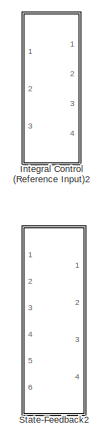
[diagram: root canvas - part 1/2, top left region]
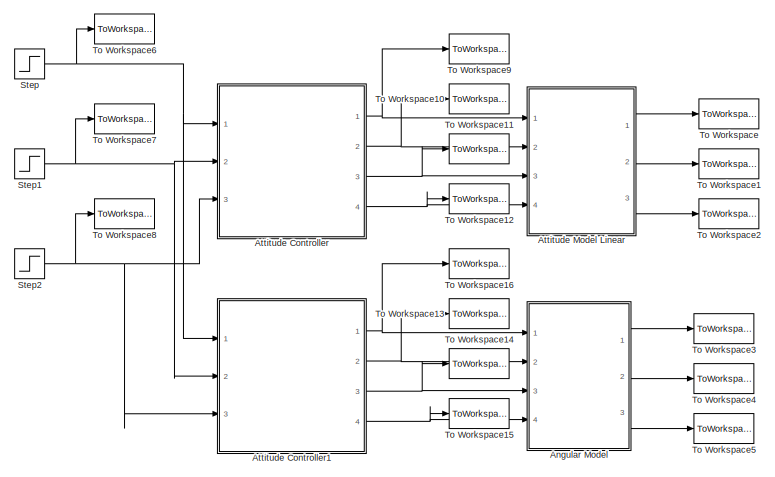
[diagram: root canvas - part 2/2, bottom right region]
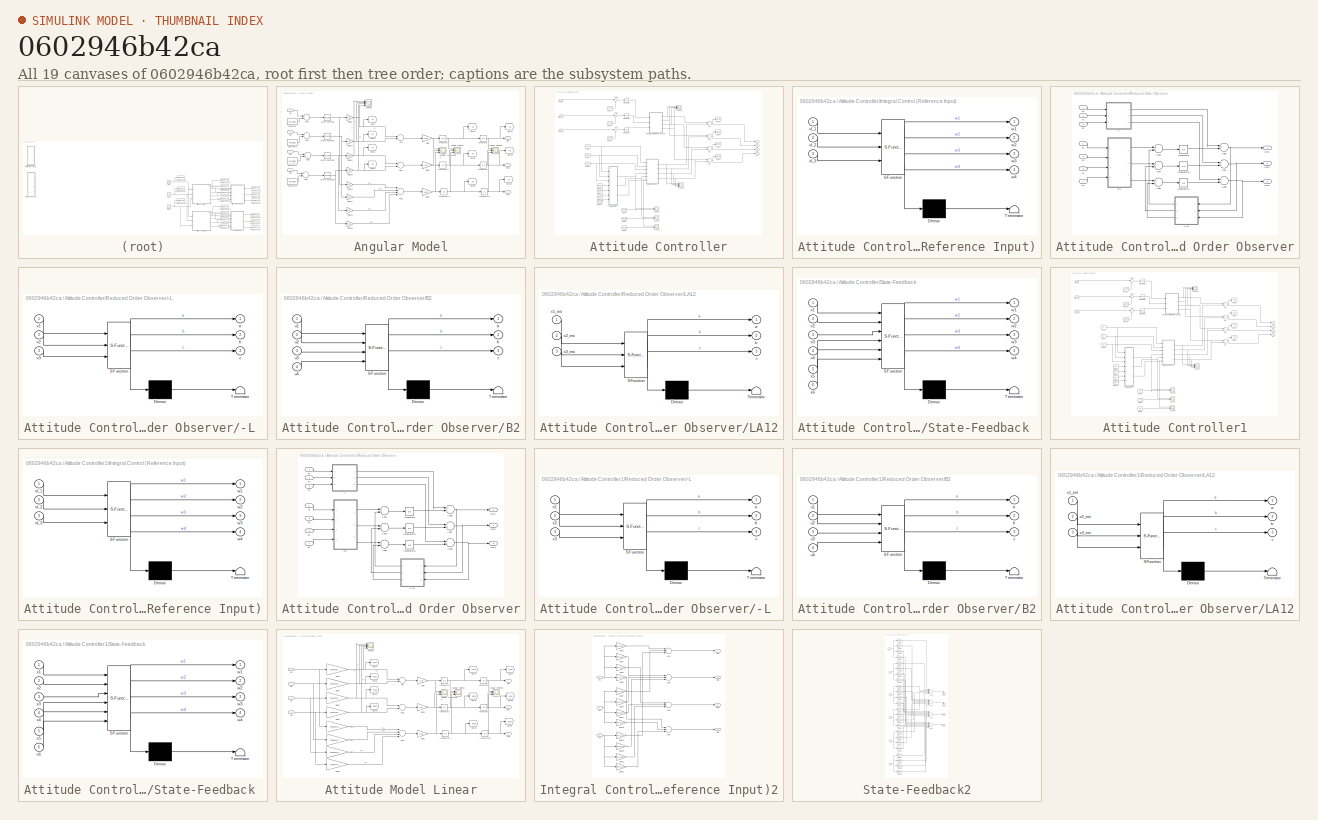
[diagram: thumbnail index - all 19 canvases of the model, root first then tree order]
MODEL slx_0602946b42ca
KIND model
CONFIG AbsTol = auto
CONFIG FixedStep = auto
CONFIG MaxStep = auto
CONFIG MinStep = auto
CONFIG RelTol = 1e-3
CONFIG SampleTimeConstraint = Unconstrained
CONFIG Solver = VariableStepAuto
CONFIG SolverMode = Auto
CONFIG SolverName = VariableStepAuto
CONFIG StartTime = 0.0
CONFIG StopTime = t
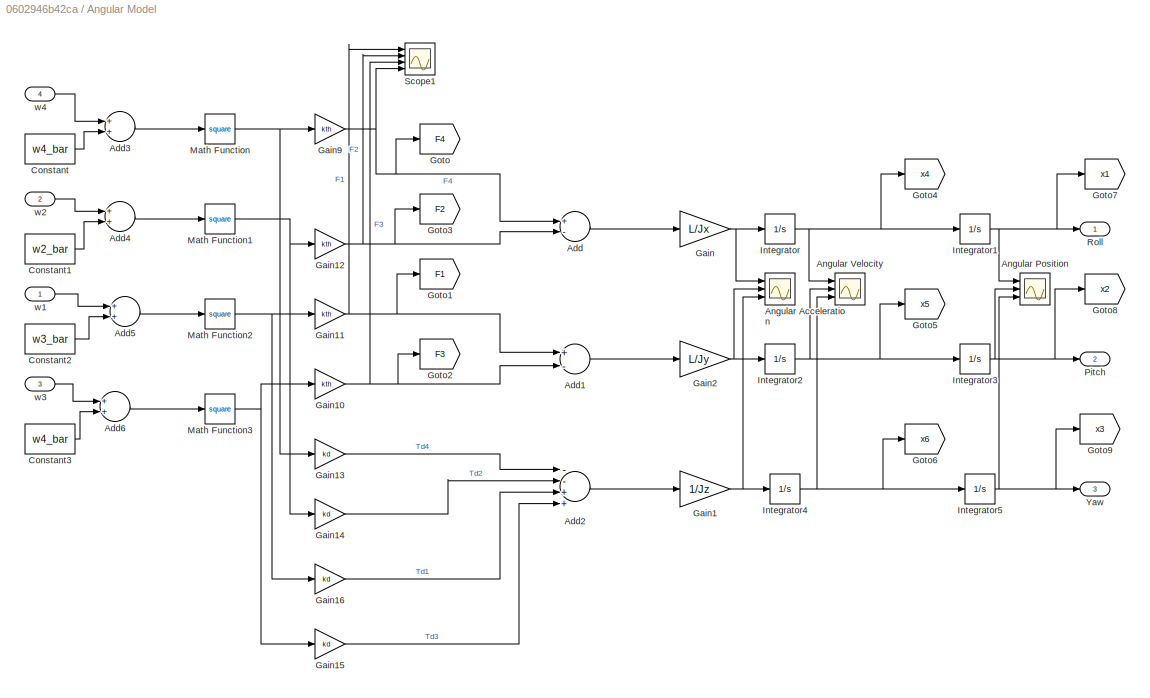
BLOCK [SubSystem] Angular Model
  Ports = [4, 3]
  RequestExecContextInheritance = off
  Variant = off
BLOCK [Sum] Angular Model/Add
  InputSameDT = off
  Inputs = +-
  OutDataTypeStr = Inherit: Inherit via internal rule
  Ports = [2, 1]
  SaturateOnIntegerOverflow = off
BLOCK [Sum] Angular Model/Add1
  InputSameDT = off
  Inputs = +-
  OutDataTypeStr = Inherit: Inherit via internal rule
  Ports = [2, 1]
  SaturateOnIntegerOverflow = off
BLOCK [Sum] Angular Model/Add2
  InputSameDT = off
  Inputs = --++
  OutDataTypeStr = Inherit: Inherit via internal rule
  Ports = [4, 1]
  SaturateOnIntegerOverflow = off
BLOCK [Sum] Angular Model/Add3
  InputSameDT = off
  OutDataTypeStr = Inherit: Inherit via internal rule
  Ports = [2, 1]
  SaturateOnIntegerOverflow = off
BLOCK [Sum] Angular Model/Add4
  InputSameDT = off
  OutDataTypeStr = Inherit: Inherit via internal rule
  Ports = [2, 1]
  SaturateOnIntegerOverflow = off
BLOCK [Sum] Angular Model/Add5
  InputSameDT = off
  OutDataTypeStr = Inherit: Inherit via internal rule
  Ports = [2, 1]
  SaturateOnIntegerOverflow = off
BLOCK [Sum] Angular Model/Add6
  InputSameDT = off
  OutDataTypeStr = Inherit: Inherit via internal rule
  Ports = [2, 1]
  SaturateOnIntegerOverflow = off
BLOCK [Scope] Angular Model/Angular Acceleration
  NumInputPorts = 3
  Ports = [3]
  ScopeSpecificationString = Simulink.scopes.TimeScopeBlockCfg('CurrentConfiguration', extmgr.ConfigurationSet(extmgr.Configuration('Core','General UI',true),extmgr.Configuration('Core','Source UI',true),extmgr.Configuration('Sources','WiredSimulink',true,'DataLoggingVariableName','ScopeData3','DataLoggingLimitDataPoints',true,'DataLoggingSaveFormat','Array','DataLoggingDecimation','1','DataLoggingDecimateData',true),extmgr.C...<+1531ch>
BLOCK [Scope] Angular Model/Angular Position
  NumInputPorts = 3
  Ports = [3]
  ScopeSpecificationString = Simulink.scopes.TimeScopeBlockCfg('CurrentConfiguration', extmgr.ConfigurationSet(extmgr.Configuration('Core','General UI',true),extmgr.Configuration('Core','Source UI',true),extmgr.Configuration('Sources','WiredSimulink',true,'DataLoggingVariableName','ScopeData1'),extmgr.Configuration('Visuals','Time Domain',true,'SerializedDisplays',{struct('MinYLimReal','-0.01233','MaxYLimReal','0.01554','YLab...<+1442ch>
BLOCK [Scope] Angular Model/Angular Velocity
  NumInputPorts = 3
  Ports = [3]
  ScopeSpecificationString = Simulink.scopes.TimeScopeBlockCfg('CurrentConfiguration', extmgr.ConfigurationSet(extmgr.Configuration('Core','General UI',true),extmgr.Configuration('Core','Source UI',true),extmgr.Configuration('Sources','WiredSimulink',true,'DataLoggingVariableName','ScopeData2','DataLoggingLimitDataPoints',true,'DataLoggingSaveFormat','Array','DataLoggingDecimation','1','DataLoggingDecimateData',true),extmgr.C...<+1624ch>
BLOCK [Constant] Angular Model/Constant
  Value = w4_bar
BLOCK [Constant] Angular Model/Constant1
  Value = w2_bar
BLOCK [Constant] Angular Model/Constant2
  Value = w3_bar
BLOCK [Constant] Angular Model/Constant3
  Value = w4_bar
BLOCK [Gain] Angular Model/Gain
  Gain = L/Jx
  OutDataTypeStr = Inherit: Inherit via internal rule
  ParamDataTypeStr = Inherit: Inherit via internal rule
  SaturateOnIntegerOverflow = off
BLOCK [Gain] Angular Model/Gain1
  Gain = 1/Jz
  OutDataTypeStr = Inherit: Inherit via internal rule
  ParamDataTypeStr = Inherit: Inherit via internal rule
  SaturateOnIntegerOverflow = off
BLOCK [Gain] Angular Model/Gain10
  Gain = kth
  OutDataTypeStr = Inherit: Inherit via internal rule
  ParamDataTypeStr = Inherit: Inherit via internal rule
  SaturateOnIntegerOverflow = off
BLOCK [Gain] Angular Model/Gain11
  Gain = kth
  OutDataTypeStr = Inherit: Inherit via internal rule
  ParamDataTypeStr = Inherit: Inherit via internal rule
  SaturateOnIntegerOverflow = off
BLOCK [Gain] Angular Model/Gain12
  Gain = kth
  OutDataTypeStr = Inherit: Inherit via internal rule
  ParamDataTypeStr = Inherit: Inherit via internal rule
  SaturateOnIntegerOverflow = off
BLOCK [Gain] Angular Model/Gain13
  Gain = kd
  OutDataTypeStr = Inherit: Inherit via internal rule
  ParamDataTypeStr = Inherit: Inherit via internal rule
  SaturateOnIntegerOverflow = off
BLOCK [Gain] Angular Model/Gain14
  Gain = kd
  OutDataTypeStr = Inherit: Inherit via internal rule
  ParamDataTypeStr = Inherit: Inherit via internal rule
  SaturateOnIntegerOverflow = off
BLOCK [Gain] Angular Model/Gain15
  Gain = kd
  OutDataTypeStr = Inherit: Inherit via internal rule
  ParamDataTypeStr = Inherit: Inherit via internal rule
  SaturateOnIntegerOverflow = off
BLOCK [Gain] Angular Model/Gain16
  Gain = kd
  OutDataTypeStr = Inherit: Inherit via internal rule
  ParamDataTypeStr = Inherit: Inherit via internal rule
  SaturateOnIntegerOverflow = off
BLOCK [Gain] Angular Model/Gain2
  Gain = L/Jy
  OutDataTypeStr = Inherit: Inherit via internal rule
  ParamDataTypeStr = Inherit: Inherit via internal rule
  SaturateOnIntegerOverflow = off
BLOCK [Gain] Angular Model/Gain9
  Gain = kth
  OutDataTypeStr = Inherit: Inherit via internal rule
  ParamDataTypeStr = Inherit: Inherit via internal rule
  SaturateOnIntegerOverflow = off
BLOCK [Goto] Angular Model/Goto
  GotoTag = F4
  TagVisibility = global
BLOCK [Goto] Angular Model/Goto1
  GotoTag = F1
  TagVisibility = global
BLOCK [Goto] Angular Model/Goto2
  GotoTag = F3
  TagVisibility = global
BLOCK [Goto] Angular Model/Goto3
  GotoTag = F2
  TagVisibility = global
BLOCK [Goto] Angular Model/Goto4
  GotoTag = x4
  TagVisibility = global
BLOCK [Goto] Angular Model/Goto5
  GotoTag = x5
  TagVisibility = global
BLOCK [Goto] Angular Model/Goto6
  GotoTag = x6
  TagVisibility = global
BLOCK [Goto] Angular Model/Goto7
  GotoTag = x1
  TagVisibility = global
BLOCK [Goto] Angular Model/Goto8
  GotoTag = x2
  TagVisibility = global
BLOCK [Goto] Angular Model/Goto9
  GotoTag = x3
  TagVisibility = global
BLOCK [Integrator] Angular Model/Integrator
  Ports = [1, 1]
BLOCK [Integrator] Angular Model/Integrator1
  Ports = [1, 1]
BLOCK [Integrator] Angular Model/Integrator2
  Ports = [1, 1]
BLOCK [Integrator] Angular Model/Integrator3
  Ports = [1, 1]
BLOCK [Integrator] Angular Model/Integrator4
  Ports = [1, 1]
BLOCK [Integrator] Angular Model/Integrator5
  Ports = [1, 1]
BLOCK [Math] Angular Model/Math Function
  Operator = square
  Ports = [1, 1]
BLOCK [Math] Angular Model/Math Function1
  Operator = square
  Ports = [1, 1]
BLOCK [Math] Angular Model/Math Function2
  Operator = square
  Ports = [1, 1]
BLOCK [Math] Angular Model/Math Function3
  Operator = square
  Ports = [1, 1]
BLOCK [Outport] Angular Model/Pitch
  IconDisplay = Port number
  Port = 2
BLOCK [Outport] Angular Model/Roll
  IconDisplay = Port number
BLOCK [Scope] Angular Model/Scope1
  NumInputPorts = 4
  Ports = [4]
  ScopeSpecificationString = Simulink.scopes.TimeScopeBlockCfg('CurrentConfiguration', extmgr.ConfigurationSet(extmgr.Configuration('Core','General UI',true),extmgr.Configuration('Core','Source UI',true),extmgr.Configuration('Sources','WiredSimulink',true),extmgr.Configuration('Visuals','Time Domain',true,'SerializedDisplays',{struct('MinYLimReal','1.46231','MaxYLimReal','3.46231','YLabelReal','','MinYLimMag','1.46231','MaxYL...<+1433ch>
BLOCK [Outport] Angular Model/Yaw
  IconDisplay = Port number
  Port = 3
BLOCK [Inport] Angular Model/w1
  IconDisplay = Port number
BLOCK [Inport] Angular Model/w2
  IconDisplay = Port number
  Port = 2
BLOCK [Inport] Angular Model/w3
  IconDisplay = Port number
  Port = 3
BLOCK [Inport] Angular Model/w4
  IconDisplay = Port number
  Port = 4
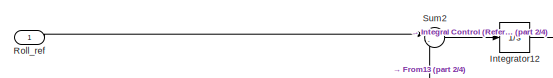
[diagram: Attitude Controller - part 1/4, top left region]
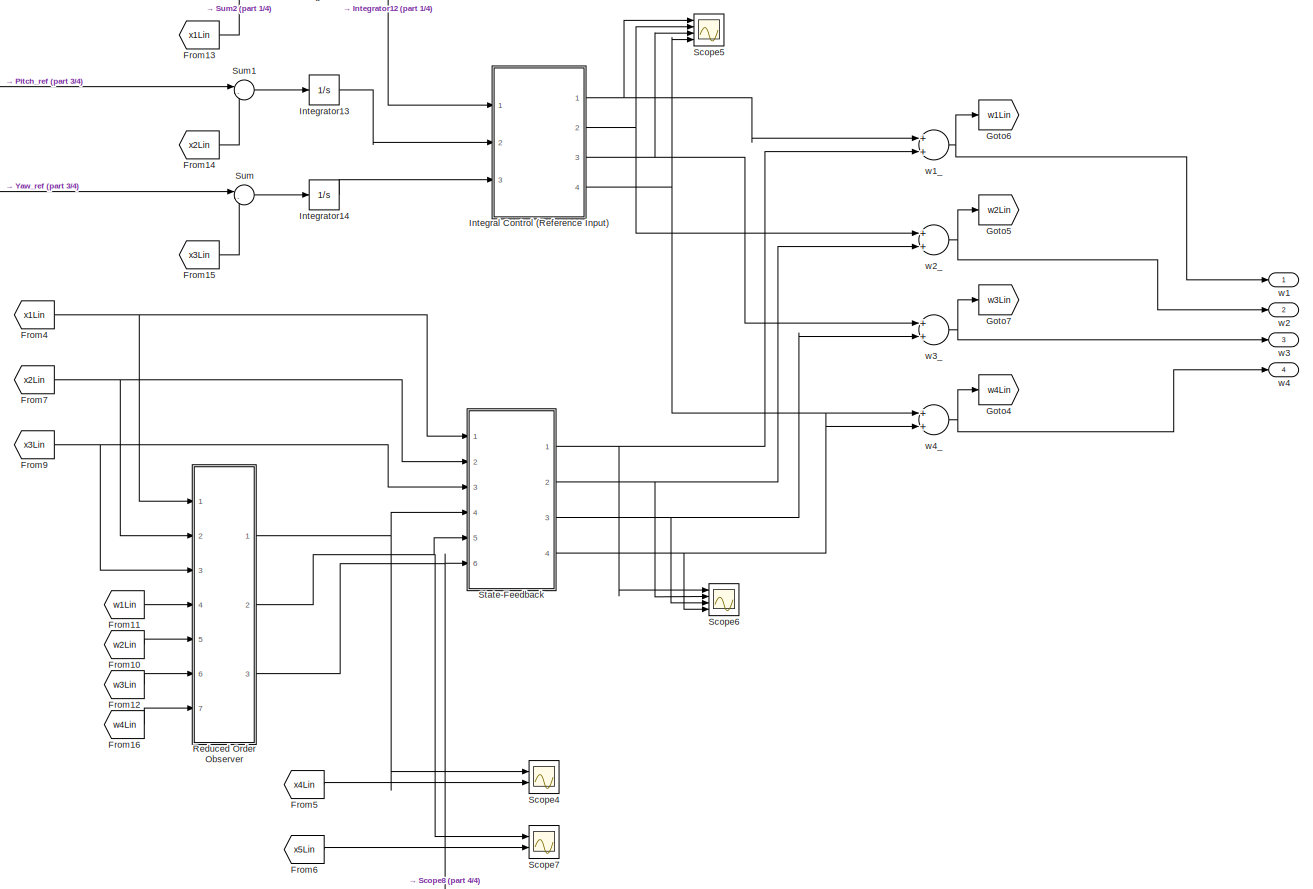
[diagram: Attitude Controller - part 2/4, most of the canvas]
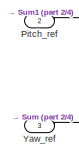
[diagram: Attitude Controller - part 3/4, top left region]
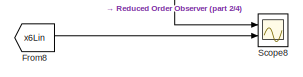
[diagram: Attitude Controller - part 4/4, bottom center region]
BLOCK [SubSystem] Attitude Controller
  Ports = [3, 4]
  RequestExecContextInheritance = off
  Variant = off
BLOCK [From] Attitude Controller/From10
  GotoTag = w2Lin
BLOCK [From] Attitude Controller/From11
  GotoTag = w1Lin
BLOCK [From] Attitude Controller/From12
  GotoTag = w3Lin
BLOCK [From] Attitude Controller/From13
  GotoTag = x1Lin
  TagVisibility = global
BLOCK [From] Attitude Controller/From14
  GotoTag = x2Lin
  TagVisibility = global
BLOCK [From] Attitude Controller/From15
  GotoTag = x3Lin
  TagVisibility = global
BLOCK [From] Attitude Controller/From16
  GotoTag = w4Lin
BLOCK [From] Attitude Controller/From4
  GotoTag = x1Lin
  TagVisibility = global
BLOCK [From] Attitude Controller/From5
  GotoTag = x4Lin
  TagVisibility = global
BLOCK [From] Attitude Controller/From6
  GotoTag = x5Lin
  TagVisibility = global
BLOCK [From] Attitude Controller/From7
  GotoTag = x2Lin
  TagVisibility = global
BLOCK [From] Attitude Controller/From8
  GotoTag = x6Lin
  TagVisibility = global
BLOCK [From] Attitude Controller/From9
  GotoTag = x3Lin
  TagVisibility = global
BLOCK [Goto] Attitude Controller/Goto4
  GotoTag = w4Lin
BLOCK [Goto] Attitude Controller/Goto5
  GotoTag = w2Lin
BLOCK [Goto] Attitude Controller/Goto6
  GotoTag = w1Lin
BLOCK [Goto] Attitude Controller/Goto7
  GotoTag = w3Lin
BLOCK [SubSystem] Attitude Controller/Integral Control (Reference Input)
  ErrorFcn = Stateflow.Translate.translate
  PermitHierarchicalResolution = ExplicitOnly
  Ports = [3, 4]
  RequestExecContextInheritance = off
  SFBlockType = MATLAB Function
  TreatAsAtomicUnit = on
  Variant = off
BLOCK [Demux] Attitude Controller/Integral Control (Reference Input)/ Demux 
  Outputs = 1
  Ports = [1, 1]
BLOCK [S-Function] Attitude Controller/Integral Control (Reference Input)/ SFunction 
  EnableBusSupport = on
  FunctionName = sf_sfun
  Parameters = FI
  PortCounts = [3 5]
  Ports = [3, 5]
  SFunctionDeploymentMode = off
  Tag = Stateflow S-Function state_feedback 6
BLOCK [Terminator] Attitude Controller/Integral Control (Reference Input)/ Terminator 
BLOCK [Outport] Attitude Controller/Integral Control (Reference Input)/w1
  IconDisplay = Port number
BLOCK [Outport] Attitude Controller/Integral Control (Reference Input)/w2
  IconDisplay = Port number
  Port = 2
BLOCK [Outport] Attitude Controller/Integral Control (Reference Input)/w3
  IconDisplay = Port number
  Port = 3
BLOCK [Outport] Attitude Controller/Integral Control (Reference Input)/w4
  IconDisplay = Port number
  Port = 4
BLOCK [Inport] Attitude Controller/Integral Control (Reference Input)/xI_1
  IconDisplay = Port number
BLOCK [Inport] Attitude Controller/Integral Control (Reference Input)/xI_2
  IconDisplay = Port number
  Port = 2
BLOCK [Inport] Attitude Controller/Integral Control (Reference Input)/xI_3
  IconDisplay = Port number
  Port = 3
BLOCK [Integrator] Attitude Controller/Integrator12
  Ports = [1, 1]
BLOCK [Integrator] Attitude Controller/Integrator13
  Ports = [1, 1]
BLOCK [Integrator] Attitude Controller/Integrator14
  Ports = [1, 1]
BLOCK [Inport] Attitude Controller/Pitch_ref
  IconDisplay = Port number
  Port = 2
BLOCK [SubSystem] Attitude Controller/Reduced Order Observer
  Ports = [7, 3]
  RequestExecContextInheritance = off
  Variant = off
BLOCK [SubSystem] Attitude Controller/Reduced Order Observer/-L 
  ErrorFcn = Stateflow.Translate.translate
  PermitHierarchicalResolution = ExplicitOnly
  Ports = [3, 3]
  RequestExecContextInheritance = off
  SFBlockType = MATLAB Function
  TreatAsAtomicUnit = on
  Variant = off
BLOCK [Demux] Attitude Controller/Reduced Order Observer/-L / Demux 
  Outputs = 1
  Ports = [1, 1]
BLOCK [S-Function] Attitude Controller/Reduced Order Observer/-L / SFunction 
  EnableBusSupport = on
  FunctionName = sf_sfun
  Parameters = Lobs
  PortCounts = [3 4]
  Ports = [3, 4]
  SFunctionDeploymentMode = off
  Tag = Stateflow S-Function state_feedback 7
BLOCK [Terminator] Attitude Controller/Reduced Order Observer/-L / Terminator 
BLOCK [Outport] Attitude Controller/Reduced Order Observer/-L /a
  IconDisplay = Port number
BLOCK [Outport] Attitude Controller/Reduced Order Observer/-L /b
  IconDisplay = Port number
  Port = 2
BLOCK [Outport] Attitude Controller/Reduced Order Observer/-L /c
  IconDisplay = Port number
  Port = 3
BLOCK [Inport] Attitude Controller/Reduced Order Observer/-L /x1
  IconDisplay = Port number
BLOCK [Inport] Attitude Controller/Reduced Order Observer/-L /x2
  IconDisplay = Port number
  Port = 2
BLOCK [Inport] Attitude Controller/Reduced Order Observer/-L /x3
  IconDisplay = Port number
  Port = 3
BLOCK [Sum] Attitude Controller/Reduced Order Observer/Add3
  InputSameDT = off
  Inputs = 2
  OutDataTypeStr = Inherit: Inherit via internal rule
  Ports = [2, 1]
  SaturateOnIntegerOverflow = off
BLOCK [Sum] Attitude Controller/Reduced Order Observer/Add4
  InputSameDT = off
  Inputs = 2
  OutDataTypeStr = Inherit: Inherit via internal rule
  Ports = [2, 1]
  SaturateOnIntegerOverflow = off
BLOCK [Sum] Attitude Controller/Reduced Order Observer/Add5
  InputSameDT = off
  Inputs = 2
  OutDataTypeStr = Inherit: Inherit via internal rule
  Ports = [2, 1]
  SaturateOnIntegerOverflow = off
BLOCK [Sum] Attitude Controller/Reduced Order Observer/Add6
  InputSameDT = off
  Inputs = 2
  OutDataTypeStr = Inherit: Inherit via internal rule
  Ports = [2, 1]
  SaturateOnIntegerOverflow = off
BLOCK [Sum] Attitude Controller/Reduced Order Observer/Add7
  InputSameDT = off
  Inputs = 2
  OutDataTypeStr = Inherit: Inherit via internal rule
  Ports = [2, 1]
  SaturateOnIntegerOverflow = off
BLOCK [Sum] Attitude Controller/Reduced Order Observer/Add8
  InputSameDT = off
  Inputs = 2
  OutDataTypeStr = Inherit: Inherit via internal rule
  Ports = [2, 1]
  SaturateOnIntegerOverflow = off
BLOCK [SubSystem] Attitude Controller/Reduced Order Observer/B2
  ErrorFcn = Stateflow.Translate.translate
  PermitHierarchicalResolution = ExplicitOnly
  Ports = [4, 3]
  RequestExecContextInheritance = off
  SFBlockType = MATLAB Function
  TreatAsAtomicUnit = on
  Variant = off
BLOCK [Demux] Attitude Controller/Reduced Order Observer/B2/ Demux 
  Outputs = 1
  Ports = [1, 1]
BLOCK [S-Function] Attitude Controller/Reduced Order Observer/B2/ SFunction 
  EnableBusSupport = on
  FunctionName = sf_sfun
  Parameters = B2
  PortCounts = [4 4]
  Ports = [4, 4]
  SFunctionDeploymentMode = off
  Tag = Stateflow S-Function state_feedback 8
BLOCK [Terminator] Attitude Controller/Reduced Order Observer/B2/ Terminator 
BLOCK [Outport] Attitude Controller/Reduced Order Observer/B2/a
  IconDisplay = Port number
BLOCK [Outport] Attitude Controller/Reduced Order Observer/B2/b
  IconDisplay = Port number
  Port = 2
BLOCK [Outport] Attitude Controller/Reduced Order Observer/B2/c
  IconDisplay = Port number
  Port = 3
BLOCK [Inport] Attitude Controller/Reduced Order Observer/B2/u1
  IconDisplay = Port number
BLOCK [Inport] Attitude Controller/Reduced Order Observer/B2/u2
  IconDisplay = Port number
  Port = 2
BLOCK [Inport] Attitude Controller/Reduced Order Observer/B2/u3
  IconDisplay = Port number
  Port = 3
BLOCK [Inport] Attitude Controller/Reduced Order Observer/B2/u4
  IconDisplay = Port number
  Port = 4
BLOCK [Integrator] Attitude Controller/Reduced Order Observer/Integrator10
  Ports = [1, 1]
BLOCK [Integrator] Attitude Controller/Reduced Order Observer/Integrator11
  Ports = [1, 1]
BLOCK [Integrator] Attitude Controller/Reduced Order Observer/Integrator9
  Ports = [1, 1]
BLOCK [SubSystem] Attitude Controller/Reduced Order Observer/LA12
  ErrorFcn = Stateflow.Translate.translate
  PermitHierarchicalResolution = ExplicitOnly
  Ports = [3, 3]
  RequestExecContextInheritance = off
  SFBlockType = MATLAB Function
  TreatAsAtomicUnit = on
  Variant = off
BLOCK [Demux] Attitude Controller/Reduced Order Observer/LA12/ Demux 
  Outputs = 1
  Ports = [1, 1]
BLOCK [S-Function] Attitude Controller/Reduced Order Observer/LA12/ SFunction 
  EnableBusSupport = on
  FunctionName = sf_sfun
  Parameters = A12,Lobs
  PortCounts = [3 4]
  Ports = [3, 4]
  SFunctionDeploymentMode = off
  Tag = Stateflow S-Function state_feedback 9
BLOCK [Terminator] Attitude Controller/Reduced Order Observer/LA12/ Terminator 
BLOCK [Outport] Attitude Controller/Reduced Order Observer/LA12/a
  IconDisplay = Port number
BLOCK [Outport] Attitude Controller/Reduced Order Observer/LA12/b
  IconDisplay = Port number
  Port = 2
BLOCK [Outport] Attitude Controller/Reduced Order Observer/LA12/c
  IconDisplay = Port number
  Port = 3
BLOCK [Inport] Attitude Controller/Reduced Order Observer/LA12/x1_est
  IconDisplay = Port number
BLOCK [Inport] Attitude Controller/Reduced Order Observer/LA12/x2_est
  IconDisplay = Port number
  Port = 2
BLOCK [Inport] Attitude Controller/Reduced Order Observer/LA12/x3_est
  IconDisplay = Port number
  Port = 3
BLOCK [Outport] Attitude Controller/Reduced Order Observer/Out1
  IconDisplay = Port number
BLOCK [Outport] Attitude Controller/Reduced Order Observer/Out2
  IconDisplay = Port number
  Port = 2
BLOCK [Outport] Attitude Controller/Reduced Order Observer/Out3
  IconDisplay = Port number
  Port = 3
BLOCK [Inport] Attitude Controller/Reduced Order Observer/u1
  IconDisplay = Port number
  Port = 4
BLOCK [Inport] Attitude Controller/Reduced Order Observer/u2
  IconDisplay = Port number
  Port = 5
BLOCK [Inport] Attitude Controller/Reduced Order Observer/u3
  IconDisplay = Port number
  Port = 6
BLOCK [Inport] Attitude Controller/Reduced Order Observer/u4
  IconDisplay = Port number
  Port = 7
BLOCK [Inport] Attitude Controller/Reduced Order Observer/x1
  IconDisplay = Port number
BLOCK [Inport] Attitude Controller/Reduced Order Observer/x2
  IconDisplay = Port number
  Port = 2
BLOCK [Inport] Attitude Controller/Reduced Order Observer/x3
  IconDisplay = Port number
  Port = 3
BLOCK [Inport] Attitude Controller/Roll_ref
  IconDisplay = Port number
BLOCK [Scope] Attitude Controller/Scope4
  NumInputPorts = 2
  Ports = [2]
  ScopeSpecificationString = Simulink.scopes.TimeScopeBlockCfg('CurrentConfiguration', extmgr.ConfigurationSet(extmgr.Configuration('Core','General UI',true),extmgr.Configuration('Core','Source UI',true),extmgr.Configuration('Sources','WiredSimulink',true,'DataLoggingVariableName','ScopeData7'),extmgr.Configuration('Visuals','Time Domain',true,'SerializedDisplays',{struct('MinYLimReal','-0.08424','MaxYLimReal','0.75814','YLab...<+1421ch>
BLOCK [Scope] Attitude Controller/Scope5
  NumInputPorts = 4
  Ports = [4]
  ScopeSpecificationString = Simulink.scopes.TimeScopeBlockCfg('CurrentConfiguration', extmgr.ConfigurationSet(extmgr.Configuration('Core','General UI',true),extmgr.Configuration('Core','Source UI',true),extmgr.Configuration('Sources','WiredSimulink',true,'DataLoggingVariableName','ScopeData8'),extmgr.Configuration('Visuals','Time Domain',true,'SerializedDisplays',{struct('MinYLimReal','-1.00000','MaxYLimReal','1.00000','YLab...<+1572ch>
BLOCK [Scope] Attitude Controller/Scope6
  NumInputPorts = 4
  Ports = [4]
  ScopeSpecificationString = C++SS(StrPVP('SaveName','ScopeData9'),StrPVP('LimitDataPoints','on'),StrPVP('DataFormat','Array'),StrPVP('Decimation','1'),StrPVP('BlockParamSampleInput','off'))
BLOCK [Scope] Attitude Controller/Scope7
  NumInputPorts = 2
  Ports = [2]
  ScopeSpecificationString = C++SS(StrPVP('SaveName','ScopeData10'),StrPVP('LimitDataPoints','on'),StrPVP('DataFormat','Array'),StrPVP('Decimation','1'),StrPVP('BlockParamSampleInput','off'))
BLOCK [Scope] Attitude Controller/Scope8
  NumInputPorts = 2
  Ports = [2]
  ScopeSpecificationString = C++SS(StrPVP('SaveName','ScopeData11'),StrPVP('LimitDataPoints','on'),StrPVP('DataFormat','Array'),StrPVP('Decimation','1'),StrPVP('BlockParamSampleInput','off'))
BLOCK [SubSystem] Attitude Controller/State-Feedback 
  ErrorFcn = Stateflow.Translate.translate
  PermitHierarchicalResolution = ExplicitOnly
  Ports = [6, 4]
  RequestExecContextInheritance = off
  SFBlockType = MATLAB Function
  TreatAsAtomicUnit = on
  Variant = off
BLOCK [Demux] Attitude Controller/State-Feedback / Demux 
  Outputs = 1
  Ports = [1, 1]
BLOCK [S-Function] Attitude Controller/State-Feedback / SFunction 
  EnableBusSupport = on
  FunctionName = sf_sfun
  Parameters = F
  PortCounts = [6 5]
  Ports = [6, 5]
  SFunctionDeploymentMode = off
  Tag = Stateflow S-Function state_feedback 10
BLOCK [Terminator] Attitude Controller/State-Feedback / Terminator 
BLOCK [Outport] Attitude Controller/State-Feedback /w1
  IconDisplay = Port number
BLOCK [Outport] Attitude Controller/State-Feedback /w2
  IconDisplay = Port number
  Port = 2
BLOCK [Outport] Attitude Controller/State-Feedback /w3
  IconDisplay = Port number
  Port = 3
BLOCK [Outport] Attitude Controller/State-Feedback /w4
  IconDisplay = Port number
  Port = 4
BLOCK [Inport] Attitude Controller/State-Feedback /x1
  IconDisplay = Port number
BLOCK [Inport] Attitude Controller/State-Feedback /x2
  IconDisplay = Port number
  Port = 2
BLOCK [Inport] Attitude Controller/State-Feedback /x3
  IconDisplay = Port number
  Port = 3
BLOCK [Inport] Attitude Controller/State-Feedback /x4
  IconDisplay = Port number
  Port = 4
BLOCK [Inport] Attitude Controller/State-Feedback /x5
  IconDisplay = Port number
  Port = 5
BLOCK [Inport] Attitude Controller/State-Feedback /x6
  IconDisplay = Port number
  Port = 6
BLOCK [Sum] Attitude Controller/Sum
  IconShape = round
  InputSameDT = off
  Inputs = |-+
  OutDataTypeStr = Inherit: Inherit via internal rule
  Ports = [2, 1]
  SaturateOnIntegerOverflow = off
BLOCK [Sum] Attitude Controller/Sum1
  IconShape = round
  InputSameDT = off
  Inputs = |-+
  OutDataTypeStr = Inherit: Inherit via internal rule
  Ports = [2, 1]
  SaturateOnIntegerOverflow = off
BLOCK [Sum] Attitude Controller/Sum2
  IconShape = round
  InputSameDT = off
  Inputs = |-+
  OutDataTypeStr = Inherit: Inherit via internal rule
  Ports = [2, 1]
  SaturateOnIntegerOverflow = off
BLOCK [Inport] Attitude Controller/Yaw_ref
  IconDisplay = Port number
  Port = 3
BLOCK [Outport] Attitude Controller/w1
  IconDisplay = Port number
BLOCK [Sum] Attitude Controller/w1_
  InputSameDT = off
  OutDataTypeStr = Inherit: Inherit via internal rule
  Ports = [2, 1]
  SaturateOnIntegerOverflow = off
BLOCK [Outport] Attitude Controller/w2
  IconDisplay = Port number
  Port = 2
BLOCK [Sum] Attitude Controller/w2_
  InputSameDT = off
  OutDataTypeStr = Inherit: Inherit via internal rule
  Ports = [2, 1]
  SaturateOnIntegerOverflow = off
BLOCK [Outport] Attitude Controller/w3
  IconDisplay = Port number
  Port = 3
BLOCK [Sum] Attitude Controller/w3_
  InputSameDT = off
  OutDataTypeStr = Inherit: Inherit via internal rule
  Ports = [2, 1]
  SaturateOnIntegerOverflow = off
BLOCK [Outport] Attitude Controller/w4
  IconDisplay = Port number
  Port = 4
BLOCK [Sum] Attitude Controller/w4_
  InputSameDT = off
  OutDataTypeStr = Inherit: Inherit via internal rule
  Ports = [2, 1]
  SaturateOnIntegerOverflow = off
BLOCK [SubSystem] Attitude Controller1
  Ports = [3, 4]
  RequestExecContextInheritance = off
  Variant = off
BLOCK [From] Attitude Controller1/From10
  GotoTag = w2
BLOCK [From] Attitude Controller1/From11
  GotoTag = w1
BLOCK [From] Attitude Controller1/From12
  GotoTag = w3
BLOCK [From] Attitude Controller1/From13
  GotoTag = x1Lin
  TagVisibility = global
BLOCK [From] Attitude Controller1/From14
  GotoTag = x2Lin
  TagVisibility = global
BLOCK [From] Attitude Controller1/From15
  GotoTag = x3Lin
  TagVisibility = global
BLOCK [From] Attitude Controller1/From16
  GotoTag = w4
BLOCK [From] Attitude Controller1/From4
  GotoTag = x1
  TagVisibility = global
BLOCK [From] Attitude Controller1/From5
  GotoTag = x4
  TagVisibility = global
BLOCK [From] Attitude Controller1/From6
  GotoTag = x5
  TagVisibility = global
BLOCK [From] Attitude Controller1/From7
  GotoTag = x2
  TagVisibility = global
BLOCK [From] Attitude Controller1/From8
  GotoTag = x6
  TagVisibility = global
BLOCK [From] Attitude Controller1/From9
  GotoTag = x3
  TagVisibility = global
BLOCK [Goto] Attitude Controller1/Goto4
  GotoTag = w4
BLOCK [Goto] Attitude Controller1/Goto5
  GotoTag = w2
BLOCK [Goto] Attitude Controller1/Goto6
  GotoTag = w1
BLOCK [Goto] Attitude Controller1/Goto7
  GotoTag = w3
BLOCK [SubSystem] Attitude Controller1/Integral Control (Reference Input)
  ErrorFcn = Stateflow.Translate.translate
  PermitHierarchicalResolution = ExplicitOnly
  Ports = [3, 4]
  RequestExecContextInheritance = off
  SFBlockType = MATLAB Function
  TreatAsAtomicUnit = on
  Variant = off
BLOCK [Demux] Attitude Controller1/Integral Control (Reference Input)/ Demux 
  Outputs = 1
  Ports = [1, 1]
BLOCK [S-Function] Attitude Controller1/Integral Control (Reference Input)/ SFunction 
  EnableBusSupport = on
  FunctionName = sf_sfun
  Parameters = FI
  PortCounts = [3 5]
  Ports = [3, 5]
  SFunctionDeploymentMode = off
  Tag = Stateflow S-Function state_feedback 1
BLOCK [Terminator] Attitude Controller1/Integral Control (Reference Input)/ Terminator 
BLOCK [Outport] Attitude Controller1/Integral Control (Reference Input)/w1
  IconDisplay = Port number
BLOCK [Outport] Attitude Controller1/Integral Control (Reference Input)/w2
  IconDisplay = Port number
  Port = 2
BLOCK [Outport] Attitude Controller1/Integral Control (Reference Input)/w3
  IconDisplay = Port number
  Port = 3
BLOCK [Outport] Attitude Controller1/Integral Control (Reference Input)/w4
  IconDisplay = Port number
  Port = 4
BLOCK [Inport] Attitude Controller1/Integral Control (Reference Input)/xI_1
  IconDisplay = Port number
BLOCK [Inport] Attitude Controller1/Integral Control (Reference Input)/xI_2
  IconDisplay = Port number
  Port = 2
BLOCK [Inport] Attitude Controller1/Integral Control (Reference Input)/xI_3
  IconDisplay = Port number
  Port = 3
BLOCK [Integrator] Attitude Controller1/Integrator12
  Ports = [1, 1]
BLOCK [Integrator] Attitude Controller1/Integrator13
  Ports = [1, 1]
BLOCK [Integrator] Attitude Controller1/Integrator14
  Ports = [1, 1]
BLOCK [Inport] Attitude Controller1/Pitch_ref
  IconDisplay = Port number
  Port = 2
BLOCK [SubSystem] Attitude Controller1/Reduced Order Observer
  Ports = [7, 3]
  RequestExecContextInheritance = off
  Variant = off
BLOCK [SubSystem] Attitude Controller1/Reduced Order Observer/-L 
  ErrorFcn = Stateflow.Translate.translate
  PermitHierarchicalResolution = ExplicitOnly
  Ports = [3, 3]
  RequestExecContextInheritance = off
  SFBlockType = MATLAB Function
  TreatAsAtomicUnit = on
  Variant = off
BLOCK [Demux] Attitude Controller1/Reduced Order Observer/-L / Demux 
  Outputs = 1
  Ports = [1, 1]
BLOCK [S-Function] Attitude Controller1/Reduced Order Observer/-L / SFunction 
  EnableBusSupport = on
  FunctionName = sf_sfun
  Parameters = Lobs
  PortCounts = [3 4]
  Ports = [3, 4]
  SFunctionDeploymentMode = off
  Tag = Stateflow S-Function state_feedback 2
BLOCK [Terminator] Attitude Controller1/Reduced Order Observer/-L / Terminator 
BLOCK [Outport] Attitude Controller1/Reduced Order Observer/-L /a
  IconDisplay = Port number
BLOCK [Outport] Attitude Controller1/Reduced Order Observer/-L /b
  IconDisplay = Port number
  Port = 2
BLOCK [Outport] Attitude Controller1/Reduced Order Observer/-L /c
  IconDisplay = Port number
  Port = 3
BLOCK [Inport] Attitude Controller1/Reduced Order Observer/-L /x1
  IconDisplay = Port number
BLOCK [Inport] Attitude Controller1/Reduced Order Observer/-L /x2
  IconDisplay = Port number
  Port = 2
BLOCK [Inport] Attitude Controller1/Reduced Order Observer/-L /x3
  IconDisplay = Port number
  Port = 3
BLOCK [Sum] Attitude Controller1/Reduced Order Observer/Add3
  InputSameDT = off
  Inputs = 2
  OutDataTypeStr = Inherit: Inherit via internal rule
  Ports = [2, 1]
  SaturateOnIntegerOverflow = off
BLOCK [Sum] Attitude Controller1/Reduced Order Observer/Add4
  InputSameDT = off
  Inputs = 2
  OutDataTypeStr = Inherit: Inherit via internal rule
  Ports = [2, 1]
  SaturateOnIntegerOverflow = off
BLOCK [Sum] Attitude Controller1/Reduced Order Observer/Add5
  InputSameDT = off
  Inputs = 2
  OutDataTypeStr = Inherit: Inherit via internal rule
  Ports = [2, 1]
  SaturateOnIntegerOverflow = off
BLOCK [Sum] Attitude Controller1/Reduced Order Observer/Add6
  InputSameDT = off
  Inputs = 2
  OutDataTypeStr = Inherit: Inherit via internal rule
  Ports = [2, 1]
  SaturateOnIntegerOverflow = off
BLOCK [Sum] Attitude Controller1/Reduced Order Observer/Add7
  InputSameDT = off
  Inputs = 2
  OutDataTypeStr = Inherit: Inherit via internal rule
  Ports = [2, 1]
  SaturateOnIntegerOverflow = off
BLOCK [Sum] Attitude Controller1/Reduced Order Observer/Add8
  InputSameDT = off
  Inputs = 2
  OutDataTypeStr = Inherit: Inherit via internal rule
  Ports = [2, 1]
  SaturateOnIntegerOverflow = off
BLOCK [SubSystem] Attitude Controller1/Reduced Order Observer/B2
  ErrorFcn = Stateflow.Translate.translate
  PermitHierarchicalResolution = ExplicitOnly
  Ports = [4, 3]
  RequestExecContextInheritance = off
  SFBlockType = MATLAB Function
  TreatAsAtomicUnit = on
  Variant = off
BLOCK [Demux] Attitude Controller1/Reduced Order Observer/B2/ Demux 
  Outputs = 1
  Ports = [1, 1]
BLOCK [S-Function] Attitude Controller1/Reduced Order Observer/B2/ SFunction 
  EnableBusSupport = on
  FunctionName = sf_sfun
  Parameters = B2
  PortCounts = [4 4]
  Ports = [4, 4]
  SFunctionDeploymentMode = off
  Tag = Stateflow S-Function state_feedback 3
BLOCK [Terminator] Attitude Controller1/Reduced Order Observer/B2/ Terminator 
BLOCK [Outport] Attitude Controller1/Reduced Order Observer/B2/a
  IconDisplay = Port number
BLOCK [Outport] Attitude Controller1/Reduced Order Observer/B2/b
  IconDisplay = Port number
  Port = 2
BLOCK [Outport] Attitude Controller1/Reduced Order Observer/B2/c
  IconDisplay = Port number
  Port = 3
BLOCK [Inport] Attitude Controller1/Reduced Order Observer/B2/u1
  IconDisplay = Port number
BLOCK [Inport] Attitude Controller1/Reduced Order Observer/B2/u2
  IconDisplay = Port number
  Port = 2
BLOCK [Inport] Attitude Controller1/Reduced Order Observer/B2/u3
  IconDisplay = Port number
  Port = 3
BLOCK [Inport] Attitude Controller1/Reduced Order Observer/B2/u4
  IconDisplay = Port number
  Port = 4
BLOCK [Integrator] Attitude Controller1/Reduced Order Observer/Integrator10
  Ports = [1, 1]
BLOCK [Integrator] Attitude Controller1/Reduced Order Observer/Integrator11
  Ports = [1, 1]
BLOCK [Integrator] Attitude Controller1/Reduced Order Observer/Integrator9
  Ports = [1, 1]
BLOCK [SubSystem] Attitude Controller1/Reduced Order Observer/LA12
  ErrorFcn = Stateflow.Translate.translate
  PermitHierarchicalResolution = ExplicitOnly
  Ports = [3, 3]
  RequestExecContextInheritance = off
  SFBlockType = MATLAB Function
  TreatAsAtomicUnit = on
  Variant = off
BLOCK [Demux] Attitude Controller1/Reduced Order Observer/LA12/ Demux 
  Outputs = 1
  Ports = [1, 1]
BLOCK [S-Function] Attitude Controller1/Reduced Order Observer/LA12/ SFunction 
  EnableBusSupport = on
  FunctionName = sf_sfun
  Parameters = A12,Lobs
  PortCounts = [3 4]
  Ports = [3, 4]
  SFunctionDeploymentMode = off
  Tag = Stateflow S-Function state_feedback 4
BLOCK [Terminator] Attitude Controller1/Reduced Order Observer/LA12/ Terminator 
BLOCK [Outport] Attitude Controller1/Reduced Order Observer/LA12/a
  IconDisplay = Port number
BLOCK [Outport] Attitude Controller1/Reduced Order Observer/LA12/b
  IconDisplay = Port number
  Port = 2
BLOCK [Outport] Attitude Controller1/Reduced Order Observer/LA12/c
  IconDisplay = Port number
  Port = 3
BLOCK [Inport] Attitude Controller1/Reduced Order Observer/LA12/x1_est
  IconDisplay = Port number
BLOCK [Inport] Attitude Controller1/Reduced Order Observer/LA12/x2_est
  IconDisplay = Port number
  Port = 2
BLOCK [Inport] Attitude Controller1/Reduced Order Observer/LA12/x3_est
  IconDisplay = Port number
  Port = 3
BLOCK [Outport] Attitude Controller1/Reduced Order Observer/Out1
  IconDisplay = Port number
BLOCK [Outport] Attitude Controller1/Reduced Order Observer/Out2
  IconDisplay = Port number
  Port = 2
BLOCK [Outport] Attitude Controller1/Reduced Order Observer/Out3
  IconDisplay = Port number
  Port = 3
BLOCK [Inport] Attitude Controller1/Reduced Order Observer/u1
  IconDisplay = Port number
  Port = 4
BLOCK [Inport] Attitude Controller1/Reduced Order Observer/u2
  IconDisplay = Port number
  Port = 5
BLOCK [Inport] Attitude Controller1/Reduced Order Observer/u3
  IconDisplay = Port number
  Port = 6
BLOCK [Inport] Attitude Controller1/Reduced Order Observer/u4
  IconDisplay = Port number
  Port = 7
BLOCK [Inport] Attitude Controller1/Reduced Order Observer/x1
  IconDisplay = Port number
BLOCK [Inport] Attitude Controller1/Reduced Order Observer/x2
  IconDisplay = Port number
  Port = 2
BLOCK [Inport] Attitude Controller1/Reduced Order Observer/x3
  IconDisplay = Port number
  Port = 3
BLOCK [Inport] Attitude Controller1/Roll_ref
  IconDisplay = Port number
BLOCK [Scope] Attitude Controller1/Scope4
  NumInputPorts = 2
  Ports = [2]
  ScopeSpecificationString = Simulink.scopes.TimeScopeBlockCfg('CurrentConfiguration', extmgr.ConfigurationSet(extmgr.Configuration('Core','General UI',true),extmgr.Configuration('Core','Source UI',true),extmgr.Configuration('Sources','WiredSimulink',true,'DataLoggingVariableName','ScopeData7'),extmgr.Configuration('Visuals','Time Domain',true,'SerializedDisplays',{struct('MinYLimReal','-0.08424','MaxYLimReal','0.75814','YLab...<+1421ch>
BLOCK [Scope] Attitude Controller1/Scope5
  NumInputPorts = 4
  Ports = [4]
  ScopeSpecificationString = Simulink.scopes.TimeScopeBlockCfg('CurrentConfiguration', extmgr.ConfigurationSet(extmgr.Configuration('Core','General UI',true),extmgr.Configuration('Core','Source UI',true),extmgr.Configuration('Sources','WiredSimulink',true,'DataLoggingVariableName','ScopeData8'),extmgr.Configuration('Visuals','Time Domain',true,'SerializedDisplays',{struct('MinYLimReal','-1.00000','MaxYLimReal','1.00000','YLab...<+1572ch>
BLOCK [Scope] Attitude Controller1/Scope6
  NumInputPorts = 4
  Ports = [4]
  ScopeSpecificationString = C++SS(StrPVP('SaveName','ScopeData9'),StrPVP('LimitDataPoints','on'),StrPVP('DataFormat','Array'),StrPVP('Decimation','1'),StrPVP('BlockParamSampleInput','off'))
BLOCK [Scope] Attitude Controller1/Scope7
  NumInputPorts = 2
  Ports = [2]
  ScopeSpecificationString = C++SS(StrPVP('SaveName','ScopeData10'),StrPVP('LimitDataPoints','on'),StrPVP('DataFormat','Array'),StrPVP('Decimation','1'),StrPVP('BlockParamSampleInput','off'))
BLOCK [Scope] Attitude Controller1/Scope8
  NumInputPorts = 2
  Ports = [2]
  ScopeSpecificationString = C++SS(StrPVP('SaveName','ScopeData11'),StrPVP('LimitDataPoints','on'),StrPVP('DataFormat','Array'),StrPVP('Decimation','1'),StrPVP('BlockParamSampleInput','off'))
BLOCK [SubSystem] Attitude Controller1/State-Feedback 
  ErrorFcn = Stateflow.Translate.translate
  PermitHierarchicalResolution = ExplicitOnly
  Ports = [6, 4]
  RequestExecContextInheritance = off
  SFBlockType = MATLAB Function
  TreatAsAtomicUnit = on
  Variant = off
BLOCK [Demux] Attitude Controller1/State-Feedback / Demux 
  Outputs = 1
  Ports = [1, 1]
BLOCK [S-Function] Attitude Controller1/State-Feedback / SFunction 
  EnableBusSupport = on
  FunctionName = sf_sfun
  Parameters = F
  PortCounts = [6 5]
  Ports = [6, 5]
  SFunctionDeploymentMode = off
  Tag = Stateflow S-Function state_feedback 5
BLOCK [Terminator] Attitude Controller1/State-Feedback / Terminator 
BLOCK [Outport] Attitude Controller1/State-Feedback /w1
  IconDisplay = Port number
BLOCK [Outport] Attitude Controller1/State-Feedback /w2
  IconDisplay = Port number
  Port = 2
BLOCK [Outport] Attitude Controller1/State-Feedback /w3
  IconDisplay = Port number
  Port = 3
BLOCK [Outport] Attitude Controller1/State-Feedback /w4
  IconDisplay = Port number
  Port = 4
BLOCK [Inport] Attitude Controller1/State-Feedback /x1
  IconDisplay = Port number
BLOCK [Inport] Attitude Controller1/State-Feedback /x2
  IconDisplay = Port number
  Port = 2
BLOCK [Inport] Attitude Controller1/State-Feedback /x3
  IconDisplay = Port number
  Port = 3
BLOCK [Inport] Attitude Controller1/State-Feedback /x4
  IconDisplay = Port number
  Port = 4
BLOCK [Inport] Attitude Controller1/State-Feedback /x5
  IconDisplay = Port number
  Port = 5
BLOCK [Inport] Attitude Controller1/State-Feedback /x6
  IconDisplay = Port number
  Port = 6
BLOCK [Sum] Attitude Controller1/Sum
  IconShape = round
  InputSameDT = off
  Inputs = |-+
  OutDataTypeStr = Inherit: Inherit via internal rule
  Ports = [2, 1]
  SaturateOnIntegerOverflow = off
BLOCK [Sum] Attitude Controller1/Sum1
  IconShape = round
  InputSameDT = off
  Inputs = |-+
  OutDataTypeStr = Inherit: Inherit via internal rule
  Ports = [2, 1]
  SaturateOnIntegerOverflow = off
BLOCK [Sum] Attitude Controller1/Sum2
  IconShape = round
  InputSameDT = off
  Inputs = |-+
  OutDataTypeStr = Inherit: Inherit via internal rule
  Ports = [2, 1]
  SaturateOnIntegerOverflow = off
BLOCK [Inport] Attitude Controller1/Yaw_ref
  IconDisplay = Port number
  Port = 3
BLOCK [Outport] Attitude Controller1/w1
  IconDisplay = Port number
BLOCK [Sum] Attitude Controller1/w1_
  InputSameDT = off
  OutDataTypeStr = Inherit: Inherit via internal rule
  Ports = [2, 1]
  SaturateOnIntegerOverflow = off
BLOCK [Outport] Attitude Controller1/w2
  IconDisplay = Port number
  Port = 2
BLOCK [Sum] Attitude Controller1/w2_
  InputSameDT = off
  OutDataTypeStr = Inherit: Inherit via internal rule
  Ports = [2, 1]
  SaturateOnIntegerOverflow = off
BLOCK [Outport] Attitude Controller1/w3
  IconDisplay = Port number
  Port = 3
BLOCK [Sum] Attitude Controller1/w3_
  InputSameDT = off
  OutDataTypeStr = Inherit: Inherit via internal rule
  Ports = [2, 1]
  SaturateOnIntegerOverflow = off
BLOCK [Outport] Attitude Controller1/w4
  IconDisplay = Port number
  Port = 4
BLOCK [Sum] Attitude Controller1/w4_
  InputSameDT = off
  OutDataTypeStr = Inherit: Inherit via internal rule
  Ports = [2, 1]
  SaturateOnIntegerOverflow = off
BLOCK [SubSystem] Attitude Model Linear
  Ports = [4, 3]
  RequestExecContextInheritance = off
  Variant = off
BLOCK [Sum] Attitude Model Linear/Add
  InputSameDT = off
  Inputs = +-
  OutDataTypeStr = Inherit: Inherit via internal rule
  Ports = [2, 1]
  SaturateOnIntegerOverflow = off
BLOCK [Sum] Attitude Model Linear/Add1
  InputSameDT = off
  Inputs = +-
  OutDataTypeStr = Inherit: Inherit via internal rule
  Ports = [2, 1]
  SaturateOnIntegerOverflow = off
BLOCK [Sum] Attitude Model Linear/Add2
  InputSameDT = off
  Inputs = --++
  OutDataTypeStr = Inherit: Inherit via internal rule
  Ports = [4, 1]
  SaturateOnIntegerOverflow = off
BLOCK [Scope] Attitude Model Linear/Angular Acceleration
  NumInputPorts = 3
  Ports = [3]
  ScopeSpecificationString = Simulink.scopes.TimeScopeBlockCfg('CurrentConfiguration', extmgr.ConfigurationSet(extmgr.Configuration('Core','General UI',true),extmgr.Configuration('Core','Source UI',true),extmgr.Configuration('Sources','WiredSimulink',true,'DataLoggingVariableName','ScopeData3','DataLoggingLimitDataPoints',true,'DataLoggingSaveFormat','Array','DataLoggingDecimation','1','DataLoggingDecimateData',true),extmgr.C...<+1531ch>
BLOCK [Scope] Attitude Model Linear/Angular Position
  NumInputPorts = 3
  Ports = [3]
  ScopeSpecificationString = Simulink.scopes.TimeScopeBlockCfg('CurrentConfiguration', extmgr.ConfigurationSet(extmgr.Configuration('Core','General UI',true),extmgr.Configuration('Core','Source UI',true),extmgr.Configuration('Sources','WiredSimulink',true,'DataLoggingVariableName','ScopeData1'),extmgr.Configuration('Visuals','Time Domain',true,'SerializedDisplays',{struct('MinYLimReal','-0.01233','MaxYLimReal','0.01554','YLab...<+1442ch>
BLOCK [Scope] Attitude Model Linear/Angular Velocity
  NumInputPorts = 3
  Ports = [3]
  ScopeSpecificationString = Simulink.scopes.TimeScopeBlockCfg('CurrentConfiguration', extmgr.ConfigurationSet(extmgr.Configuration('Core','General UI',true),extmgr.Configuration('Core','Source UI',true),extmgr.Configuration('Sources','WiredSimulink',true,'DataLoggingVariableName','ScopeData2','DataLoggingLimitDataPoints',true,'DataLoggingSaveFormat','Array','DataLoggingDecimation','1','DataLoggingDecimateData',true),extmgr.C...<+1624ch>
BLOCK [Gain] Attitude Model Linear/Gain
  Gain = L/Jx
  OutDataTypeStr = Inherit: Inherit via internal rule
  ParamDataTypeStr = Inherit: Inherit via internal rule
  SaturateOnIntegerOverflow = off
BLOCK [Gain] Attitude Model Linear/Gain1
  Gain = 1/Jz
  OutDataTypeStr = Inherit: Inherit via internal rule
  ParamDataTypeStr = Inherit: Inherit via internal rule
  SaturateOnIntegerOverflow = off
BLOCK [Gain] Attitude Model Linear/Gain10
  Gain = 2*kd*w1_bar
  OutDataTypeStr = Inherit: Inherit via internal rule
  ParamDataTypeStr = Inherit: Inherit via internal rule
  SaturateOnIntegerOverflow = off
BLOCK [Gain] Attitude Model Linear/Gain2
  Gain = L/Jy
  OutDataTypeStr = Inherit: Inherit via internal rule
  ParamDataTypeStr = Inherit: Inherit via internal rule
  SaturateOnIntegerOverflow = off
BLOCK [Gain] Attitude Model Linear/Gain3
  Gain = 2*kth*w2_bar
  OutDataTypeStr = Inherit: Inherit via internal rule
  ParamDataTypeStr = Inherit: Inherit via internal rule
  SaturateOnIntegerOverflow = off
BLOCK [Gain] Attitude Model Linear/Gain4
  Gain = 2*kth*w1_bar
  OutDataTypeStr = Inherit: Inherit via internal rule
  ParamDataTypeStr = Inherit: Inherit via internal rule
  SaturateOnIntegerOverflow = off
BLOCK [Gain] Attitude Model Linear/Gain5
  Gain = 2*kth*w3_bar
  OutDataTypeStr = Inherit: Inherit via internal rule
  ParamDataTypeStr = Inherit: Inherit via internal rule
  SaturateOnIntegerOverflow = off
BLOCK [Gain] Attitude Model Linear/Gain6
  Gain = 2*kd*w2_bar
  OutDataTypeStr = Inherit: Inherit via internal rule
  ParamDataTypeStr = Inherit: Inherit via internal rule
  SaturateOnIntegerOverflow = off
BLOCK [Gain] Attitude Model Linear/Gain7
  Gain = 2*kd*w3_bar
  OutDataTypeStr = Inherit: Inherit via internal rule
  ParamDataTypeStr = Inherit: Inherit via internal rule
  SaturateOnIntegerOverflow = off
BLOCK [Gain] Attitude Model Linear/Gain8
  Gain = 2*kd*w4_bar
  OutDataTypeStr = Inherit: Inherit via internal rule
  ParamDataTypeStr = Inherit: Inherit via internal rule
  SaturateOnIntegerOverflow = off
BLOCK [Gain] Attitude Model Linear/Gain9
  Gain = 2*kth*w4_bar
  OutDataTypeStr = Inherit: Inherit via internal rule
  ParamDataTypeStr = Inherit: Inherit via internal rule
  SaturateOnIntegerOverflow = off
BLOCK [Goto] Attitude Model Linear/Goto
  GotoTag = F4Lin
  TagVisibility = global
BLOCK [Goto] Attitude Model Linear/Goto1
  GotoTag = F1Lin
  TagVisibility = global
BLOCK [Goto] Attitude Model Linear/Goto2
  GotoTag = F3Lin
  TagVisibility = global
BLOCK [Goto] Attitude Model Linear/Goto3
  GotoTag = F2Lin
  TagVisibility = global
BLOCK [Goto] Attitude Model Linear/Goto4
  GotoTag = x4Lin
  TagVisibility = global
BLOCK [Goto] Attitude Model Linear/Goto5
  GotoTag = x5Lin
  TagVisibility = global
BLOCK [Goto] Attitude Model Linear/Goto6
  GotoTag = x6Lin
  TagVisibility = global
BLOCK [Goto] Attitude Model Linear/Goto7
  GotoTag = x1Lin
  TagVisibility = global
BLOCK [Goto] Attitude Model Linear/Goto8
  GotoTag = x2Lin
  TagVisibility = global
BLOCK [Goto] Attitude Model Linear/Goto9
  GotoTag = x3Lin
  TagVisibility = global
BLOCK [Integrator] Attitude Model Linear/Integrator
  Ports = [1, 1]
BLOCK [Integrator] Attitude Model Linear/Integrator1
  Ports = [1, 1]
BLOCK [Integrator] Attitude Model Linear/Integrator2
  Ports = [1, 1]
BLOCK [Integrator] Attitude Model Linear/Integrator3
  Ports = [1, 1]
BLOCK [Integrator] Attitude Model Linear/Integrator4
  Ports = [1, 1]
BLOCK [Integrator] Attitude Model Linear/Integrator5
  Ports = [1, 1]
BLOCK [Outport] Attitude Model Linear/Pitch
  IconDisplay = Port number
  Port = 2
BLOCK [Outport] Attitude Model Linear/Roll
  IconDisplay = Port number
BLOCK [Scope] Attitude Model Linear/Scope1
  NumInputPorts = 4
  Ports = [4]
  ScopeSpecificationString = Simulink.scopes.TimeScopeBlockCfg('CurrentConfiguration', extmgr.ConfigurationSet(extmgr.Configuration('Core','General UI',true),extmgr.Configuration('Core','Source UI',true),extmgr.Configuration('Sources','WiredSimulink',true),extmgr.Configuration('Visuals','Time Domain',true,'SerializedDisplays',{struct('MinYLimReal','-1.00000','MaxYLimReal','1.00000','YLabelReal','','MinYLimMag','0.00000','MaxY...<+1435ch>
BLOCK [Outport] Attitude Model Linear/Yaw
  IconDisplay = Port number
  Port = 3
BLOCK [Inport] Attitude Model Linear/w1
  IconDisplay = Port number
BLOCK [Inport] Attitude Model Linear/w2
  IconDisplay = Port number
  Port = 2
BLOCK [Inport] Attitude Model Linear/w3
  IconDisplay = Port number
  Port = 3
BLOCK [Inport] Attitude Model Linear/w4
  IconDisplay = Port number
  Port = 4
BLOCK [SubSystem] Integral Control (Reference Input)2
  Commented = on
  Ports = [3, 4]
  RequestExecContextInheritance = off
  Variant = off
BLOCK [Sum] Integral Control (Reference Input)2/Add3
  InputSameDT = off
  Inputs = +++
  OutDataTypeStr = Inherit: Inherit via internal rule
  Ports = [3, 1]
  SaturateOnIntegerOverflow = off
BLOCK [Sum] Integral Control (Reference Input)2/Add4
  InputSameDT = off
  Inputs = +++
  OutDataTypeStr = Inherit: Inherit via internal rule
  Ports = [3, 1]
  SaturateOnIntegerOverflow = off
BLOCK [Sum] Integral Control (Reference Input)2/Add5
  InputSameDT = off
  Inputs = +++
  OutDataTypeStr = Inherit: Inherit via internal rule
  Ports = [3, 1]
  SaturateOnIntegerOverflow = off
BLOCK [Sum] Integral Control (Reference Input)2/Add6
  InputSameDT = off
  Inputs = +++
  OutDataTypeStr = Inherit: Inherit via internal rule
  Ports = [3, 1]
  SaturateOnIntegerOverflow = off
BLOCK [Gain] Integral Control (Reference Input)2/Gain17
  Gain = FI(3,2)
  OutDataTypeStr = Inherit: Inherit via internal rule
  ParamDataTypeStr = Inherit: Inherit via internal rule
  SaturateOnIntegerOverflow = off
BLOCK [Gain] Integral Control (Reference Input)2/Gain18
  Gain = FI(4,2)
  OutDataTypeStr = Inherit: Inherit via internal rule
  ParamDataTypeStr = Inherit: Inherit via internal rule
  SaturateOnIntegerOverflow = off
BLOCK [Gain] Integral Control (Reference Input)2/Gain19
  Gain = FI(1,3)
  OutDataTypeStr = Inherit: Inherit via internal rule
  ParamDataTypeStr = Inherit: Inherit via internal rule
  SaturateOnIntegerOverflow = off
BLOCK [Gain] Integral Control (Reference Input)2/Gain20
  Gain = FI(2,3)
  OutDataTypeStr = Inherit: Inherit via internal rule
  ParamDataTypeStr = Inherit: Inherit via internal rule
  SaturateOnIntegerOverflow = off
BLOCK [Gain] Integral Control (Reference Input)2/Gain21
  Gain = FI(3,3)
  OutDataTypeStr = Inherit: Inherit via internal rule
  ParamDataTypeStr = Inherit: Inherit via internal rule
  SaturateOnIntegerOverflow = off
BLOCK [Gain] Integral Control (Reference Input)2/Gain22
  Gain = FI(4,3)
  OutDataTypeStr = Inherit: Inherit via internal rule
  ParamDataTypeStr = Inherit: Inherit via internal rule
  SaturateOnIntegerOverflow = off
BLOCK [Gain] Integral Control (Reference Input)2/Gain3
  Gain = FI(1,1)
  OutDataTypeStr = Inherit: Inherit via internal rule
  ParamDataTypeStr = Inherit: Inherit via internal rule
  SaturateOnIntegerOverflow = off
BLOCK [Gain] Integral Control (Reference Input)2/Gain4
  Gain = FI(2,1)
  OutDataTypeStr = Inherit: Inherit via internal rule
  ParamDataTypeStr = Inherit: Inherit via internal rule
  SaturateOnIntegerOverflow = off
BLOCK [Gain] Integral Control (Reference Input)2/Gain5
  Gain = FI(3,1)
  OutDataTypeStr = Inherit: Inherit via internal rule
  ParamDataTypeStr = Inherit: Inherit via internal rule
  SaturateOnIntegerOverflow = off
BLOCK [Gain] Integral Control (Reference Input)2/Gain6
  Gain = FI(4,1)
  OutDataTypeStr = Inherit: Inherit via internal rule
  ParamDataTypeStr = Inherit: Inherit via internal rule
  SaturateOnIntegerOverflow = off
BLOCK [Gain] Integral Control (Reference Input)2/Gain7
  Gain = FI(1,2)
  OutDataTypeStr = Inherit: Inherit via internal rule
  ParamDataTypeStr = Inherit: Inherit via internal rule
  SaturateOnIntegerOverflow = off
BLOCK [Gain] Integral Control (Reference Input)2/Gain8
  Gain = FI(2,2)
  OutDataTypeStr = Inherit: Inherit via internal rule
  ParamDataTypeStr = Inherit: Inherit via internal rule
  SaturateOnIntegerOverflow = off
BLOCK [Inport] Integral Control (Reference Input)2/In1
  IconDisplay = Port number
BLOCK [Inport] Integral Control (Reference Input)2/In2
  IconDisplay = Port number
  Port = 2
BLOCK [Inport] Integral Control (Reference Input)2/In3
  IconDisplay = Port number
  Port = 3
BLOCK [Outport] Integral Control (Reference Input)2/Out1
  IconDisplay = Port number
BLOCK [Outport] Integral Control (Reference Input)2/Out2
  IconDisplay = Port number
  Port = 2
BLOCK [Outport] Integral Control (Reference Input)2/Out3
  IconDisplay = Port number
  Port = 3
BLOCK [Outport] Integral Control (Reference Input)2/Out4
  IconDisplay = Port number
  Port = 4
BLOCK [SubSystem] State-Feedback2
  Commented = on
  Ports = [6, 4]
  RequestExecContextInheritance = off
  Variant = off
BLOCK [Sum] State-Feedback2/Add3
  InputSameDT = off
  Inputs = ++++++
  OutDataTypeStr = Inherit: Inherit via internal rule
  Ports = [6, 1]
  SaturateOnIntegerOverflow = off
BLOCK [Sum] State-Feedback2/Add4
  InputSameDT = off
  Inputs = ++++++
  OutDataTypeStr = Inherit: Inherit via internal rule
  Ports = [6, 1]
  SaturateOnIntegerOverflow = off
BLOCK [Sum] State-Feedback2/Add5
  InputSameDT = off
  Inputs = ++++++
  OutDataTypeStr = Inherit: Inherit via internal rule
  Ports = [6, 1]
  SaturateOnIntegerOverflow = off
BLOCK [Sum] State-Feedback2/Add6
  InputSameDT = off
  Inputs = ++++++
  OutDataTypeStr = Inherit: Inherit via internal rule
  Ports = [6, 1]
  SaturateOnIntegerOverflow = off
BLOCK [Gain] State-Feedback2/Gain17
  Gain = F(3,2)
  OutDataTypeStr = Inherit: Inherit via internal rule
  ParamDataTypeStr = Inherit: Inherit via internal rule
  SaturateOnIntegerOverflow = off
BLOCK [Gain] State-Feedback2/Gain18
  Gain = F(4,2)
  OutDataTypeStr = Inherit: Inherit via internal rule
  ParamDataTypeStr = Inherit: Inherit via internal rule
  SaturateOnIntegerOverflow = off
BLOCK [Gain] State-Feedback2/Gain19
  Gain = F(3,3)
  OutDataTypeStr = Inherit: Inherit via internal rule
  ParamDataTypeStr = Inherit: Inherit via internal rule
  SaturateOnIntegerOverflow = off
BLOCK [Gain] State-Feedback2/Gain20
  Gain = F(4,3)
  OutDataTypeStr = Inherit: Inherit via internal rule
  ParamDataTypeStr = Inherit: Inherit via internal rule
  SaturateOnIntegerOverflow = off
BLOCK [Gain] State-Feedback2/Gain21
  Gain = F(1,3)
  OutDataTypeStr = Inherit: Inherit via internal rule
  ParamDataTypeStr = Inherit: Inherit via internal rule
  SaturateOnIntegerOverflow = off
BLOCK [Gain] State-Feedback2/Gain22
  Gain = F(2,3)
  OutDataTypeStr = Inherit: Inherit via internal rule
  ParamDataTypeStr = Inherit: Inherit via internal rule
  SaturateOnIntegerOverflow = off
BLOCK [Gain] State-Feedback2/Gain23
  Gain = F(3,5)
  OutDataTypeStr = Inherit: Inherit via internal rule
  ParamDataTypeStr = Inherit: Inherit via internal rule
  SaturateOnIntegerOverflow = off
BLOCK [Gain] State-Feedback2/Gain24
  Gain = F(4,5)
  OutDataTypeStr = Inherit: Inherit via internal rule
  ParamDataTypeStr = Inherit: Inherit via internal rule
  SaturateOnIntegerOverflow = off
BLOCK [Gain] State-Feedback2/Gain25
  Gain = F(3,6)
  OutDataTypeStr = Inherit: Inherit via internal rule
  ParamDataTypeStr = Inherit: Inherit via internal rule
  SaturateOnIntegerOverflow = off
BLOCK [Gain] State-Feedback2/Gain26
  Gain = F(4,6)
  OutDataTypeStr = Inherit: Inherit via internal rule
  ParamDataTypeStr = Inherit: Inherit via internal rule
  SaturateOnIntegerOverflow = off
BLOCK [Gain] State-Feedback2/Gain27
  Gain = F(1,6)
  OutDataTypeStr = Inherit: Inherit via internal rule
  ParamDataTypeStr = Inherit: Inherit via internal rule
  SaturateOnIntegerOverflow = off
BLOCK [Gain] State-Feedback2/Gain28
  Gain = F(2,6)
  OutDataTypeStr = Inherit: Inherit via internal rule
  ParamDataTypeStr = Inherit: Inherit via internal rule
  SaturateOnIntegerOverflow = off
BLOCK [Gain] State-Feedback2/Gain29
  Gain = F(1,4)
  OutDataTypeStr = Inherit: Inherit via internal rule
  ParamDataTypeStr = Inherit: Inherit via internal rule
  SaturateOnIntegerOverflow = off
BLOCK [Gain] State-Feedback2/Gain3
  Gain = F(1,1)
  OutDataTypeStr = Inherit: Inherit via internal rule
  ParamDataTypeStr = Inherit: Inherit via internal rule
  SaturateOnIntegerOverflow = off
BLOCK [Gain] State-Feedback2/Gain30
  Gain = F(2,4)
  OutDataTypeStr = Inherit: Inherit via internal rule
  ParamDataTypeStr = Inherit: Inherit via internal rule
  SaturateOnIntegerOverflow = off
BLOCK [Gain] State-Feedback2/Gain31
  Gain = F(3,4)
  OutDataTypeStr = Inherit: Inherit via internal rule
  ParamDataTypeStr = Inherit: Inherit via internal rule
  SaturateOnIntegerOverflow = off
BLOCK [Gain] State-Feedback2/Gain32
  Gain = F(4,4)
  OutDataTypeStr = Inherit: Inherit via internal rule
  ParamDataTypeStr = Inherit: Inherit via internal rule
  SaturateOnIntegerOverflow = off
BLOCK [Gain] State-Feedback2/Gain33
  Gain = F(1,5)
  OutDataTypeStr = Inherit: Inherit via internal rule
  ParamDataTypeStr = Inherit: Inherit via internal rule
  SaturateOnIntegerOverflow = off
BLOCK [Gain] State-Feedback2/Gain34
  Gain = F(2,5)
  OutDataTypeStr = Inherit: Inherit via internal rule
  ParamDataTypeStr = Inherit: Inherit via internal rule
  SaturateOnIntegerOverflow = off
BLOCK [Gain] State-Feedback2/Gain4
  Gain = F(2,1)
  OutDataTypeStr = Inherit: Inherit via internal rule
  ParamDataTypeStr = Inherit: Inherit via internal rule
  SaturateOnIntegerOverflow = off
BLOCK [Gain] State-Feedback2/Gain5
  Gain = F(3,1)
  OutDataTypeStr = Inherit: Inherit via internal rule
  ParamDataTypeStr = Inherit: Inherit via internal rule
  SaturateOnIntegerOverflow = off
BLOCK [Gain] State-Feedback2/Gain6
  Gain = F(4,1)
  OutDataTypeStr = Inherit: Inherit via internal rule
  ParamDataTypeStr = Inherit: Inherit via internal rule
  SaturateOnIntegerOverflow = off
BLOCK [Gain] State-Feedback2/Gain7
  Gain = F(1,2)
  OutDataTypeStr = Inherit: Inherit via internal rule
  ParamDataTypeStr = Inherit: Inherit via internal rule
  SaturateOnIntegerOverflow = off
BLOCK [Gain] State-Feedback2/Gain8
  Gain = F(2,2)
  OutDataTypeStr = Inherit: Inherit via internal rule
  ParamDataTypeStr = Inherit: Inherit via internal rule
  SaturateOnIntegerOverflow = off
BLOCK [Inport] State-Feedback2/In1
  IconDisplay = Port number
BLOCK [Inport] State-Feedback2/In2
  IconDisplay = Port number
  Port = 2
BLOCK [Inport] State-Feedback2/In3
  IconDisplay = Port number
  Port = 3
BLOCK [Inport] State-Feedback2/In4
  IconDisplay = Port number
  Port = 4
BLOCK [Inport] State-Feedback2/In5
  IconDisplay = Port number
  Port = 5
BLOCK [Inport] State-Feedback2/In6
  IconDisplay = Port number
  Port = 6
BLOCK [Outport] State-Feedback2/Out1
  IconDisplay = Port number
BLOCK [Outport] State-Feedback2/Out2
  IconDisplay = Port number
  Port = 2
BLOCK [Outport] State-Feedback2/Out3
  IconDisplay = Port number
  Port = 3
BLOCK [Outport] State-Feedback2/Out4
  IconDisplay = Port number
  Port = 4
BLOCK [Step] Step
  After = roll_ref
  SampleTime = 0
  Time = roll_time
BLOCK [Step] Step1
  After = pitch_ref
  SampleTime = 0
  Time = pitch_time
BLOCK [Step] Step2
  After = yaw_ref
  SampleTime = 0
  Time = yaw_time
BLOCK [ToWorkspace] To Workspace
  FixptAsFi = on
  MaxDataPoints = inf
  Ports = [1]
  SampleTime = -1
  Save2DSignal = 3-D array (concatenate along third dimension)
  SaveFormat = Timeseries
  VariableName = roll_lin
BLOCK [ToWorkspace] To Workspace1
  FixptAsFi = on
  MaxDataPoints = inf
  Ports = [1]
  SampleTime = -1
  Save2DSignal = 3-D array (concatenate along third dimension)
  SaveFormat = Timeseries
  VariableName = pitch_lin
BLOCK [ToWorkspace] To Workspace10
  FixptAsFi = on
  MaxDataPoints = inf
  Ports = [1]
  SampleTime = -1
  Save2DSignal = 3-D array (concatenate along third dimension)
  SaveFormat = Timeseries
  VariableName = w2_lin
BLOCK [ToWorkspace] To Workspace11
  FixptAsFi = on
  MaxDataPoints = inf
  Ports = [1]
  SampleTime = -1
  Save2DSignal = 3-D array (concatenate along third dimension)
  SaveFormat = Timeseries
  VariableName = w3_lin
BLOCK [ToWorkspace] To Workspace12
  FixptAsFi = on
  MaxDataPoints = inf
  Ports = [1]
  SampleTime = -1
  Save2DSignal = 3-D array (concatenate along third dimension)
  SaveFormat = Timeseries
  VariableName = w4_lin
BLOCK [ToWorkspace] To Workspace13
  FixptAsFi = on
  MaxDataPoints = inf
  Ports = [1]
  SampleTime = -1
  Save2DSignal = 3-D array (concatenate along third dimension)
  SaveFormat = Timeseries
  VariableName = w2
BLOCK [ToWorkspace] To Workspace14
  FixptAsFi = on
  MaxDataPoints = inf
  Ports = [1]
  SampleTime = -1
  Save2DSignal = 3-D array (concatenate along third dimension)
  SaveFormat = Timeseries
  VariableName = w3
BLOCK [ToWorkspace] To Workspace15
  FixptAsFi = on
  MaxDataPoints = inf
  Ports = [1]
  SampleTime = -1
  Save2DSignal = 3-D array (concatenate along third dimension)
  SaveFormat = Timeseries
  VariableName = w4
BLOCK [ToWorkspace] To Workspace16
  FixptAsFi = on
  MaxDataPoints = inf
  Ports = [1]
  SampleTime = -1
  Save2DSignal = 3-D array (concatenate along third dimension)
  SaveFormat = Timeseries
  VariableName = w1
BLOCK [ToWorkspace] To Workspace2
  FixptAsFi = on
  MaxDataPoints = inf
  Ports = [1]
  SampleTime = -1
  Save2DSignal = 3-D array (concatenate along third dimension)
  SaveFormat = Timeseries
  VariableName = yaw_lin
BLOCK [ToWorkspace] To Workspace3
  FixptAsFi = on
  MaxDataPoints = inf
  Ports = [1]
  SampleTime = -1
  Save2DSignal = 3-D array (concatenate along third dimension)
  SaveFormat = Timeseries
  VariableName = roll
BLOCK [ToWorkspace] To Workspace4
  FixptAsFi = on
  MaxDataPoints = inf
  Ports = [1]
  SampleTime = -1
  Save2DSignal = 3-D array (concatenate along third dimension)
  SaveFormat = Timeseries
  VariableName = pitch
BLOCK [ToWorkspace] To Workspace5
  FixptAsFi = on
  MaxDataPoints = inf
  Ports = [1]
  SampleTime = -1
  Save2DSignal = 3-D array (concatenate along third dimension)
  SaveFormat = Timeseries
  VariableName = yaw
BLOCK [ToWorkspace] To Workspace6
  FixptAsFi = on
  MaxDataPoints = inf
  Ports = [1]
  SampleTime = -1
  Save2DSignal = 3-D array (concatenate along third dimension)
  SaveFormat = Timeseries
  VariableName = roll_ref
BLOCK [ToWorkspace] To Workspace7
  FixptAsFi = on
  MaxDataPoints = inf
  Ports = [1]
  SampleTime = -1
  Save2DSignal = 3-D array (concatenate along third dimension)
  SaveFormat = Timeseries
  VariableName = pitch_ref
BLOCK [ToWorkspace] To Workspace8
  FixptAsFi = on
  MaxDataPoints = inf
  Ports = [1]
  SampleTime = -1
  Save2DSignal = 3-D array (concatenate along third dimension)
  SaveFormat = Timeseries
  VariableName = yaw_ref
BLOCK [ToWorkspace] To Workspace9
  FixptAsFi = on
  MaxDataPoints = inf
  Ports = [1]
  SampleTime = -1
  Save2DSignal = 3-D array (concatenate along third dimension)
  SaveFormat = Timeseries
  VariableName = w1_lin
LINE Angular Model/Add1:1 -> Angular Model/Gain2:1
LINE Angular Model/Add2:1 -> Angular Model/Gain1:1
LINE Angular Model/Add3:1 -> Angular Model/Math Function:1
LINE Angular Model/Add4:1 -> Angular Model/Math Function1:1
LINE Angular Model/Add5:1 -> Angular Model/Math Function2:1
LINE Angular Model/Add6:1 -> Angular Model/Math Function3:1
LINE Angular Model/Add:1 -> Angular Model/Gain:1
LINE Angular Model/Constant1:1 -> Angular Model/Add4:2
LINE Angular Model/Constant2:1 -> Angular Model/Add5:2
LINE Angular Model/Constant3:1 -> Angular Model/Add6:2
LINE Angular Model/Constant:1 -> Angular Model/Add3:2
NET Angular Model/Gain10:1 -> Angular Model/Add1:2, Angular Model/Goto2:1, Angular Model/Scope1:3
NET Angular Model/Gain11:1 -> Angular Model/Add1:1, Angular Model/Goto1:1, Angular Model/Scope1:1
NET Angular Model/Gain12:1 -> Angular Model/Add:2, Angular Model/Goto3:1, Angular Model/Scope1:2
LINE Angular Model/Gain13:1 -> Angular Model/Add2:1
LINE Angular Model/Gain14:1 -> Angular Model/Add2:2
LINE Angular Model/Gain15:1 -> Angular Model/Add2:4
LINE Angular Model/Gain16:1 -> Angular Model/Add2:3
NET Angular Model/Gain1:1 -> Angular Model/Angular Acceleration:3, Angular Model/Integrator4:1
NET Angular Model/Gain2:1 -> Angular Model/Angular Acceleration:2, Angular Model/Integrator2:1
NET Angular Model/Gain9:1 -> Angular Model/Add:1, Angular Model/Goto:1, Angular Model/Scope1:4
NET Angular Model/Gain:1 -> Angular Model/Angular Acceleration:1, Angular Model/Integrator:1
NET Angular Model/Integrator1:1 -> Angular Model/Angular Position:1, Angular Model/Goto7:1, Angular Model/Roll:1
NET Angular Model/Integrator2:1 -> Angular Model/Angular Velocity:2, Angular Model/Goto5:1, Angular Model/Integrator3:1
NET Angular Model/Integrator3:1 -> Angular Model/Angular Position:2, Angular Model/Goto8:1, Angular Model/Pitch:1
NET Angular Model/Integrator4:1 -> Angular Model/Angular Velocity:3, Angular Model/Goto6:1, Angular Model/Integrator5:1
NET Angular Model/Integrator5:1 -> Angular Model/Angular Position:3, Angular Model/Goto9:1, Angular Model/Yaw:1
NET Angular Model/Integrator:1 -> Angular Model/Angular Velocity:1, Angular Model/Goto4:1, Angular Model/Integrator1:1
NET Angular Model/Math Function1:1 -> Angular Model/Gain12:1, Angular Model/Gain14:1
NET Angular Model/Math Function2:1 -> Angular Model/Gain11:1, Angular Model/Gain16:1
NET Angular Model/Math Function3:1 -> Angular Model/Gain10:1, Angular Model/Gain15:1
NET Angular Model/Math Function:1 -> Angular Model/Gain13:1, Angular Model/Gain9:1
LINE Angular Model/w1:1 -> Angular Model/Add5:1
LINE Angular Model/w2:1 -> Angular Model/Add4:1
LINE Angular Model/w3:1 -> Angular Model/Add6:1
LINE Angular Model/w4:1 -> Angular Model/Add3:1
LINE Angular Model:1 -> To Workspace3:1
LINE Angular Model:2 -> To Workspace4:1
LINE Angular Model:3 -> To Workspace5:1
LINE Attitude Controller/From10:1 -> Attitude Controller/Reduced Order Observer:5
LINE Attitude Controller/From11:1 -> Attitude Controller/Reduced Order Observer:4
LINE Attitude Controller/From12:1 -> Attitude Controller/Reduced Order Observer:6
LINE Attitude Controller/From13:1 -> Attitude Controller/Sum2:2
LINE Attitude Controller/From14:1 -> Attitude Controller/Sum1:2
LINE Attitude Controller/From15:1 -> Attitude Controller/Sum:2
LINE Attitude Controller/From16:1 -> Attitude Controller/Reduced Order Observer:7
NET Attitude Controller/From4:1 -> Attitude Controller/Reduced Order Observer:1, Attitude Controller/State-Feedback :1
LINE Attitude Controller/From5:1 -> Attitude Controller/Scope4:2
LINE Attitude Controller/From6:1 -> Attitude Controller/Scope7:2
NET Attitude Controller/From7:1 -> Attitude Controller/Reduced Order Observer:2, Attitude Controller/State-Feedback :2
LINE Attitude Controller/From8:1 -> Attitude Controller/Scope8:2
NET Attitude Controller/From9:1 -> Attitude Controller/Reduced Order Observer:3, Attitude Controller/State-Feedback :3
NET Attitude Controller/Integral Control (Reference Input):1 -> Attitude Controller/Scope5:1, Attitude Controller/w1_:1
NET Attitude Controller/Integral Control (Reference Input):2 -> Attitude Controller/Scope5:2, Attitude Controller/w2_:1
NET Attitude Controller/Integral Control (Reference Input):3 -> Attitude Controller/Scope5:3, Attitude Controller/w3_:1
NET Attitude Controller/Integral Control (Reference Input):4 -> Attitude Controller/Scope5:4, Attitude Controller/w4_:1
LINE Attitude Controller/Integrator12:1 -> Attitude Controller/Integral Control (Reference Input):1
LINE Attitude Controller/Integrator13:1 -> Attitude Controller/Integral Control (Reference Input):2
LINE Attitude Controller/Integrator14:1 -> Attitude Controller/Integral Control (Reference Input):3
LINE Attitude Controller/Pitch_ref:1 -> Attitude Controller/Sum1:1
LINE Attitude Controller/Reduced Order Observer/-L :1 -> Attitude Controller/Reduced Order Observer/Add6:1
LINE Attitude Controller/Reduced Order Observer/-L :2 -> Attitude Controller/Reduced Order Observer/Add7:1
LINE Attitude Controller/Reduced Order Observer/-L :3 -> Attitude Controller/Reduced Order Observer/Add8:1
LINE Attitude Controller/Reduced Order Observer/Add3:1 -> Attitude Controller/Reduced Order Observer/Integrator9:1
LINE Attitude Controller/Reduced Order Observer/Add4:1 -> Attitude Controller/Reduced Order Observer/Integrator10:1
LINE Attitude Controller/Reduced Order Observer/Add5:1 -> Attitude Controller/Reduced Order Observer/Integrator11:1
NET Attitude Controller/Reduced Order Observer/Add6:1 -> Attitude Controller/Reduced Order Observer/LA12:1, Attitude Controller/Reduced Order Observer/Out1:1
NET Attitude Controller/Reduced Order Observer/Add7:1 -> Attitude Controller/Reduced Order Observer/LA12:2, Attitude Controller/Reduced Order Observer/Out2:1
NET Attitude Controller/Reduced Order Observer/Add8:1 -> Attitude Controller/Reduced Order Observer/LA12:3, Attitude Controller/Reduced Order Observer/Out3:1
LINE Attitude Controller/Reduced Order Observer/B2:1 -> Attitude Controller/Reduced Order Observer/Add3:1
LINE Attitude Controller/Reduced Order Observer/B2:2 -> Attitude Controller/Reduced Order Observer/Add4:1
LINE Attitude Controller/Reduced Order Observer/B2:3 -> Attitude Controller/Reduced Order Observer/Add5:1
LINE Attitude Controller/Reduced Order Observer/Integrator10:1 -> Attitude Controller/Reduced Order Observer/Add7:2
LINE Attitude Controller/Reduced Order Observer/Integrator11:1 -> Attitude Controller/Reduced Order Observer/Add8:2
LINE Attitude Controller/Reduced Order Observer/Integrator9:1 -> Attitude Controller/Reduced Order Observer/Add6:2
LINE Attitude Controller/Reduced Order Observer/LA12:1 -> Attitude Controller/Reduced Order Observer/Add3:2
LINE Attitude Controller/Reduced Order Observer/LA12:2 -> Attitude Controller/Reduced Order Observer/Add4:2
LINE Attitude Controller/Reduced Order Observer/LA12:3 -> Attitude Controller/Reduced Order Observer/Add5:2
LINE Attitude Controller/Reduced Order Observer/u1:1 -> Attitude Controller/Reduced Order Observer/B2:1
LINE Attitude Controller/Reduced Order Observer/u2:1 -> Attitude Controller/Reduced Order Observer/B2:2
LINE Attitude Controller/Reduced Order Observer/u3:1 -> Attitude Controller/Reduced Order Observer/B2:3
LINE Attitude Controller/Reduced Order Observer/u4:1 -> Attitude Controller/Reduced Order Observer/B2:4
LINE Attitude Controller/Reduced Order Observer/x1:1 -> Attitude Controller/Reduced Order Observer/-L :1
LINE Attitude Controller/Reduced Order Observer/x2:1 -> Attitude Controller/Reduced Order Observer/-L :2
LINE Attitude Controller/Reduced Order Observer/x3:1 -> Attitude Controller/Reduced Order Observer/-L :3
NET Attitude Controller/Reduced Order Observer:1 -> Attitude Controller/Scope4:1, Attitude Controller/State-Feedback :4
NET Attitude Controller/Reduced Order Observer:2 -> Attitude Controller/Scope7:1, Attitude Controller/State-Feedback :5
NET Attitude Controller/Reduced Order Observer:3 -> Attitude Controller/Scope8:1, Attitude Controller/State-Feedback :6
LINE Attitude Controller/Roll_ref:1 -> Attitude Controller/Sum2:1
NET Attitude Controller/State-Feedback :1 -> Attitude Controller/Scope6:1, Attitude Controller/w1_:2
NET Attitude Controller/State-Feedback :2 -> Attitude Controller/Scope6:2, Attitude Controller/w2_:2
NET Attitude Controller/State-Feedback :3 -> Attitude Controller/Scope6:3, Attitude Controller/w3_:2
NET Attitude Controller/State-Feedback :4 -> Attitude Controller/Scope6:4, Attitude Controller/w4_:2
LINE Attitude Controller/Sum1:1 -> Attitude Controller/Integrator13:1
LINE Attitude Controller/Sum2:1 -> Attitude Controller/Integrator12:1
LINE Attitude Controller/Sum:1 -> Attitude Controller/Integrator14:1
LINE Attitude Controller/Yaw_ref:1 -> Attitude Controller/Sum:1
NET Attitude Controller/w1_:1 -> Attitude Controller/Goto6:1, Attitude Controller/w1:1
NET Attitude Controller/w2_:1 -> Attitude Controller/Goto5:1, Attitude Controller/w2:1
NET Attitude Controller/w3_:1 -> Attitude Controller/Goto7:1, Attitude Controller/w3:1
NET Attitude Controller/w4_:1 -> Attitude Controller/Goto4:1, Attitude Controller/w4:1
LINE Attitude Controller1/From10:1 -> Attitude Controller1/Reduced Order Observer:5
LINE Attitude Controller1/From11:1 -> Attitude Controller1/Reduced Order Observer:4
LINE Attitude Controller1/From12:1 -> Attitude Controller1/Reduced Order Observer:6
LINE Attitude Controller1/From13:1 -> Attitude Controller1/Sum2:2
LINE Attitude Controller1/From14:1 -> Attitude Controller1/Sum1:2
LINE Attitude Controller1/From15:1 -> Attitude Controller1/Sum:2
LINE Attitude Controller1/From16:1 -> Attitude Controller1/Reduced Order Observer:7
NET Attitude Controller1/From4:1 -> Attitude Controller1/Reduced Order Observer:1, Attitude Controller1/State-Feedback :1
LINE Attitude Controller1/From5:1 -> Attitude Controller1/Scope4:2
LINE Attitude Controller1/From6:1 -> Attitude Controller1/Scope7:2
NET Attitude Controller1/From7:1 -> Attitude Controller1/Reduced Order Observer:2, Attitude Controller1/State-Feedback :2
LINE Attitude Controller1/From8:1 -> Attitude Controller1/Scope8:2
NET Attitude Controller1/From9:1 -> Attitude Controller1/Reduced Order Observer:3, Attitude Controller1/State-Feedback :3
NET Attitude Controller1/Integral Control (Reference Input):1 -> Attitude Controller1/Scope5:1, Attitude Controller1/w1_:1
NET Attitude Controller1/Integral Control (Reference Input):2 -> Attitude Controller1/Scope5:2, Attitude Controller1/w2_:1
NET Attitude Controller1/Integral Control (Reference Input):3 -> Attitude Controller1/Scope5:3, Attitude Controller1/w3_:1
NET Attitude Controller1/Integral Control (Reference Input):4 -> Attitude Controller1/Scope5:4, Attitude Controller1/w4_:1
LINE Attitude Controller1/Integrator12:1 -> Attitude Controller1/Integral Control (Reference Input):1
LINE Attitude Controller1/Integrator13:1 -> Attitude Controller1/Integral Control (Reference Input):2
LINE Attitude Controller1/Integrator14:1 -> Attitude Controller1/Integral Control (Reference Input):3
LINE Attitude Controller1/Pitch_ref:1 -> Attitude Controller1/Sum1:1
LINE Attitude Controller1/Reduced Order Observer/-L :1 -> Attitude Controller1/Reduced Order Observer/Add6:1
LINE Attitude Controller1/Reduced Order Observer/-L :2 -> Attitude Controller1/Reduced Order Observer/Add7:1
LINE Attitude Controller1/Reduced Order Observer/-L :3 -> Attitude Controller1/Reduced Order Observer/Add8:1
LINE Attitude Controller1/Reduced Order Observer/Add3:1 -> Attitude Controller1/Reduced Order Observer/Integrator9:1
LINE Attitude Controller1/Reduced Order Observer/Add4:1 -> Attitude Controller1/Reduced Order Observer/Integrator10:1
LINE Attitude Controller1/Reduced Order Observer/Add5:1 -> Attitude Controller1/Reduced Order Observer/Integrator11:1
NET Attitude Controller1/Reduced Order Observer/Add6:1 -> Attitude Controller1/Reduced Order Observer/LA12:1, Attitude Controller1/Reduced Order Observer/Out1:1
NET Attitude Controller1/Reduced Order Observer/Add7:1 -> Attitude Controller1/Reduced Order Observer/LA12:2, Attitude Controller1/Reduced Order Observer/Out2:1
NET Attitude Controller1/Reduced Order Observer/Add8:1 -> Attitude Controller1/Reduced Order Observer/LA12:3, Attitude Controller1/Reduced Order Observer/Out3:1
LINE Attitude Controller1/Reduced Order Observer/B2:1 -> Attitude Controller1/Reduced Order Observer/Add3:1
LINE Attitude Controller1/Reduced Order Observer/B2:2 -> Attitude Controller1/Reduced Order Observer/Add4:1
LINE Attitude Controller1/Reduced Order Observer/B2:3 -> Attitude Controller1/Reduced Order Observer/Add5:1
LINE Attitude Controller1/Reduced Order Observer/Integrator10:1 -> Attitude Controller1/Reduced Order Observer/Add7:2
LINE Attitude Controller1/Reduced Order Observer/Integrator11:1 -> Attitude Controller1/Reduced Order Observer/Add8:2
LINE Attitude Controller1/Reduced Order Observer/Integrator9:1 -> Attitude Controller1/Reduced Order Observer/Add6:2
LINE Attitude Controller1/Reduced Order Observer/LA12:1 -> Attitude Controller1/Reduced Order Observer/Add3:2
LINE Attitude Controller1/Reduced Order Observer/LA12:2 -> Attitude Controller1/Reduced Order Observer/Add4:2
LINE Attitude Controller1/Reduced Order Observer/LA12:3 -> Attitude Controller1/Reduced Order Observer/Add5:2
LINE Attitude Controller1/Reduced Order Observer/u1:1 -> Attitude Controller1/Reduced Order Observer/B2:1
LINE Attitude Controller1/Reduced Order Observer/u2:1 -> Attitude Controller1/Reduced Order Observer/B2:2
LINE Attitude Controller1/Reduced Order Observer/u3:1 -> Attitude Controller1/Reduced Order Observer/B2:3
LINE Attitude Controller1/Reduced Order Observer/u4:1 -> Attitude Controller1/Reduced Order Observer/B2:4
LINE Attitude Controller1/Reduced Order Observer/x1:1 -> Attitude Controller1/Reduced Order Observer/-L :1
LINE Attitude Controller1/Reduced Order Observer/x2:1 -> Attitude Controller1/Reduced Order Observer/-L :2
LINE Attitude Controller1/Reduced Order Observer/x3:1 -> Attitude Controller1/Reduced Order Observer/-L :3
NET Attitude Controller1/Reduced Order Observer:1 -> Attitude Controller1/Scope4:1, Attitude Controller1/State-Feedback :4
NET Attitude Controller1/Reduced Order Observer:2 -> Attitude Controller1/Scope7:1, Attitude Controller1/State-Feedback :5
NET Attitude Controller1/Reduced Order Observer:3 -> Attitude Controller1/Scope8:1, Attitude Controller1/State-Feedback :6
LINE Attitude Controller1/Roll_ref:1 -> Attitude Controller1/Sum2:1
NET Attitude Controller1/State-Feedback :1 -> Attitude Controller1/Scope6:1, Attitude Controller1/w1_:2
NET Attitude Controller1/State-Feedback :2 -> Attitude Controller1/Scope6:2, Attitude Controller1/w2_:2
NET Attitude Controller1/State-Feedback :3 -> Attitude Controller1/Scope6:3, Attitude Controller1/w3_:2
NET Attitude Controller1/State-Feedback :4 -> Attitude Controller1/Scope6:4, Attitude Controller1/w4_:2
LINE Attitude Controller1/Sum1:1 -> Attitude Controller1/Integrator13:1
LINE Attitude Controller1/Sum2:1 -> Attitude Controller1/Integrator12:1
LINE Attitude Controller1/Sum:1 -> Attitude Controller1/Integrator14:1
LINE Attitude Controller1/Yaw_ref:1 -> Attitude Controller1/Sum:1
NET Attitude Controller1/w1_:1 -> Attitude Controller1/Goto6:1, Attitude Controller1/w1:1
NET Attitude Controller1/w2_:1 -> Attitude Controller1/Goto5:1, Attitude Controller1/w2:1
NET Attitude Controller1/w3_:1 -> Attitude Controller1/Goto7:1, Attitude Controller1/w3:1
NET Attitude Controller1/w4_:1 -> Attitude Controller1/Goto4:1, Attitude Controller1/w4:1
NET Attitude Controller1:1 -> Angular Model:1, To Workspace16:1
NET Attitude Controller1:2 -> Angular Model:2, To Workspace13:1
NET Attitude Controller1:3 -> Angular Model:3, To Workspace14:1
NET Attitude Controller1:4 -> Angular Model:4, To Workspace15:1
NET Attitude Controller:1 -> Attitude Model Linear:1, To Workspace9:1
NET Attitude Controller:2 -> Attitude Model Linear:2, To Workspace10:1
NET Attitude Controller:3 -> Attitude Model Linear:3, To Workspace11:1
NET Attitude Controller:4 -> Attitude Model Linear:4, To Workspace12:1
LINE Attitude Model Linear/Add1:1 -> Attitude Model Linear/Gain2:1
LINE Attitude Model Linear/Add2:1 -> Attitude Model Linear/Gain1:1
LINE Attitude Model Linear/Add:1 -> Attitude Model Linear/Gain:1
LINE Attitude Model Linear/Gain10:1 -> Attitude Model Linear/Add2:1
NET Attitude Model Linear/Gain1:1 -> Attitude Model Linear/Angular Acceleration:3, Attitude Model Linear/Integrator4:1
NET Attitude Model Linear/Gain2:1 -> Attitude Model Linear/Angular Acceleration:2, Attitude Model Linear/Integrator2:1
NET Attitude Model Linear/Gain3:1 -> Attitude Model Linear/Add:2, Attitude Model Linear/Goto3:1, Attitude Model Linear/Scope1:2
NET Attitude Model Linear/Gain4:1 -> Attitude Model Linear/Add1:1, Attitude Model Linear/Goto1:1, Attitude Model Linear/Scope1:1
NET Attitude Model Linear/Gain5:1 -> Attitude Model Linear/Add1:2, Attitude Model Linear/Goto2:1, Attitude Model Linear/Scope1:3
LINE Attitude Model Linear/Gain6:1 -> Attitude Model Linear/Add2:2
LINE Attitude Model Linear/Gain7:1 -> Attitude Model Linear/Add2:3
LINE Attitude Model Linear/Gain8:1 -> Attitude Model Linear/Add2:4
NET Attitude Model Linear/Gain9:1 -> Attitude Model Linear/Add:1, Attitude Model Linear/Goto:1, Attitude Model Linear/Scope1:4
NET Attitude Model Linear/Gain:1 -> Attitude Model Linear/Angular Acceleration:1, Attitude Model Linear/Integrator:1
NET Attitude Model Linear/Integrator1:1 -> Attitude Model Linear/Angular Position:1, Attitude Model Linear/Goto7:1, Attitude Model Linear/Roll:1
NET Attitude Model Linear/Integrator2:1 -> Attitude Model Linear/Angular Velocity:2, Attitude Model Linear/Goto5:1, Attitude Model Linear/Integrator3:1
NET Attitude Model Linear/Integrator3:1 -> Attitude Model Linear/Angular Position:2, Attitude Model Linear/Goto8:1, Attitude Model Linear/Pitch:1
NET Attitude Model Linear/Integrator4:1 -> Attitude Model Linear/Angular Velocity:3, Attitude Model Linear/Goto6:1, Attitude Model Linear/Integrator5:1
NET Attitude Model Linear/Integrator5:1 -> Attitude Model Linear/Angular Position:3, Attitude Model Linear/Goto9:1, Attitude Model Linear/Yaw:1
NET Attitude Model Linear/Integrator:1 -> Attitude Model Linear/Angular Velocity:1, Attitude Model Linear/Goto4:1, Attitude Model Linear/Integrator1:1
NET Attitude Model Linear/w1:1 -> Attitude Model Linear/Gain4:1, Attitude Model Linear/Gain7:1
NET Attitude Model Linear/w2:1 -> Attitude Model Linear/Gain3:1, Attitude Model Linear/Gain6:1
NET Attitude Model Linear/w3:1 -> Attitude Model Linear/Gain5:1, Attitude Model Linear/Gain8:1
NET Attitude Model Linear/w4:1 -> Attitude Model Linear/Gain10:1, Attitude Model Linear/Gain9:1
LINE Attitude Model Linear:1 -> To Workspace:1
LINE Attitude Model Linear:2 -> To Workspace1:1
LINE Attitude Model Linear:3 -> To Workspace2:1
LINE Integral Control (Reference Input)2/Add3:1 -> Integral Control (Reference Input)2/Out1:1
LINE Integral Control (Reference Input)2/Add4:1 -> Integral Control (Reference Input)2/Out2:1
LINE Integral Control (Reference Input)2/Add5:1 -> Integral Control (Reference Input)2/Out3:1
LINE Integral Control (Reference Input)2/Add6:1 -> Integral Control (Reference Input)2/Out4:1
LINE Integral Control (Reference Input)2/Gain17:1 -> Integral Control (Reference Input)2/Add5:2
LINE Integral Control (Reference Input)2/Gain18:1 -> Integral Control (Reference Input)2/Add6:2
LINE Integral Control (Reference Input)2/Gain19:1 -> Integral Control (Reference Input)2/Add3:3
LINE Integral Control (Reference Input)2/Gain20:1 -> Integral Control (Reference Input)2/Add4:3
LINE Integral Control (Reference Input)2/Gain21:1 -> Integral Control (Reference Input)2/Add5:3
LINE Integral Control (Reference Input)2/Gain22:1 -> Integral Control (Reference Input)2/Add6:3
LINE Integral Control (Reference Input)2/Gain3:1 -> Integral Control (Reference Input)2/Add3:1
LINE Integral Control (Reference Input)2/Gain4:1 -> Integral Control (Reference Input)2/Add4:1
LINE Integral Control (Reference Input)2/Gain5:1 -> Integral Control (Reference Input)2/Add5:1
LINE Integral Control (Reference Input)2/Gain6:1 -> Integral Control (Reference Input)2/Add6:1
LINE Integral Control (Reference Input)2/Gain7:1 -> Integral Control (Reference Input)2/Add3:2
LINE Integral Control (Reference Input)2/Gain8:1 -> Integral Control (Reference Input)2/Add4:2
NET Integral Control (Reference Input)2/In1:1 -> Integral Control (Reference Input)2/Gain3:1, Integral Control (Reference Input)2/Gain4:1, Integral Control (Reference Input)2/Gain5:1, Integral Control (Reference Input)2/Gain6:1
NET Integral Control (Reference Input)2/In2:1 -> Integral Control (Reference Input)2/Gain17:1, Integral Control (Reference Input)2/Gain18:1, Integral Control (Reference Input)2/Gain7:1, Integral Control (Reference Input)2/Gain8:1
NET Integral Control (Reference Input)2/In3:1 -> Integral Control (Reference Input)2/Gain19:1, Integral Control (Reference Input)2/Gain20:1, Integral Control (Reference Input)2/Gain21:1, Integral Control (Reference Input)2/Gain22:1
LINE State-Feedback2/Add3:1 -> State-Feedback2/Out1:1
LINE State-Feedback2/Add4:1 -> State-Feedback2/Out2:1
LINE State-Feedback2/Add5:1 -> State-Feedback2/Out3:1
LINE State-Feedback2/Add6:1 -> State-Feedback2/Out4:1
LINE State-Feedback2/Gain17:1 -> State-Feedback2/Add5:2
LINE State-Feedback2/Gain18:1 -> State-Feedback2/Add6:2
LINE State-Feedback2/Gain19:1 -> State-Feedback2/Add5:3
LINE State-Feedback2/Gain20:1 -> State-Feedback2/Add6:3
LINE State-Feedback2/Gain21:1 -> State-Feedback2/Add3:3
LINE State-Feedback2/Gain22:1 -> State-Feedback2/Add4:3
LINE State-Feedback2/Gain23:1 -> State-Feedback2/Add5:5
LINE State-Feedback2/Gain24:1 -> State-Feedback2/Add6:5
LINE State-Feedback2/Gain25:1 -> State-Feedback2/Add5:6
LINE State-Feedback2/Gain26:1 -> State-Feedback2/Add6:6
LINE State-Feedback2/Gain27:1 -> State-Feedback2/Add3:6
LINE State-Feedback2/Gain28:1 -> State-Feedback2/Add4:6
LINE State-Feedback2/Gain29:1 -> State-Feedback2/Add3:4
LINE State-Feedback2/Gain30:1 -> State-Feedback2/Add4:4
LINE State-Feedback2/Gain31:1 -> State-Feedback2/Add5:4
LINE State-Feedback2/Gain32:1 -> State-Feedback2/Add6:4
LINE State-Feedback2/Gain33:1 -> State-Feedback2/Add3:5
LINE State-Feedback2/Gain34:1 -> State-Feedback2/Add4:5
LINE State-Feedback2/Gain3:1 -> State-Feedback2/Add3:1
LINE State-Feedback2/Gain4:1 -> State-Feedback2/Add4:1
LINE State-Feedback2/Gain5:1 -> State-Feedback2/Add5:1
LINE State-Feedback2/Gain6:1 -> State-Feedback2/Add6:1
LINE State-Feedback2/Gain7:1 -> State-Feedback2/Add3:2
LINE State-Feedback2/Gain8:1 -> State-Feedback2/Add4:2
NET State-Feedback2/In1:1 -> State-Feedback2/Gain3:1, State-Feedback2/Gain4:1, State-Feedback2/Gain5:1, State-Feedback2/Gain6:1
NET State-Feedback2/In2:1 -> State-Feedback2/Gain17:1, State-Feedback2/Gain18:1, State-Feedback2/Gain7:1, State-Feedback2/Gain8:1
NET State-Feedback2/In3:1 -> State-Feedback2/Gain19:1, State-Feedback2/Gain20:1, State-Feedback2/Gain21:1, State-Feedback2/Gain22:1
NET State-Feedback2/In4:1 -> State-Feedback2/Gain29:1, State-Feedback2/Gain30:1, State-Feedback2/Gain31:1, State-Feedback2/Gain32:1
NET State-Feedback2/In5:1 -> State-Feedback2/Gain23:1, State-Feedback2/Gain24:1, State-Feedback2/Gain33:1, State-Feedback2/Gain34:1
NET State-Feedback2/In6:1 -> State-Feedback2/Gain25:1, State-Feedback2/Gain26:1, State-Feedback2/Gain27:1, State-Feedback2/Gain28:1
NET Step1:1 -> Attitude Controller1:2, Attitude Controller:2, To Workspace7:1
NET Step2:1 -> Attitude Controller1:3, Attitude Controller:3, To Workspace8:1
NET Step:1 -> Attitude Controller1:1, Attitude Controller:1, To Workspace6:1
note: NET lines group one-source signal fan-out (src -> all destinations, sorted); 1:1 wires keep LINE
CHART Attitude Controller1/Integral Control
 (Reference Input) states=1 transitions=1
  STATE_LABEL 'eML_blk_kernel()'
  STATE_LABEL 'SCRIPT:\nfunction [w1,w2,w3,w4] = FI_matrix(xI_1, xI_2, xI_3,FI)\nxI=[xI_1;\n    xI_2;\n    xI_3];\n\nw=FI*xI;\n\nw1=w(1);\nw2=w(2);\nw3=w(3);\nw4=w(4);'
CHART Attitude Controller1/Reduced Order Observer/-L
 states=1 transitions=1
  STATE_LABEL 'eML_blk_kernel()'
  STATE_LABEL 'SCRIPT:\nfunction [a,b,c] = minusL_matrix(x1, x2, x3, Lobs)\nx=[x1;\n    x2;\n    x3];\n\nabc=-Lobs*x;\n\na=abc(1);\nb=abc(2);\nc=abc(3);'
CHART Attitude Controller1/Reduced Order Observer/B2 states=1 transitions=1
  STATE_LABEL 'eML_blk_kernel()'
  STATE_LABEL 'SCRIPT:\nfunction [a, b, c] = B2_matrix(u1, u2, u3, u4, B2)\nu=[u1;\n    u2;\n    u3;\n    u4];\n\nabc=B2*u;\n\na=abc(1);\nb=abc(2);\nc=abc(3);\n'
CHART Attitude Controller1/Reduced Order Observer/LA12 states=1 transitions=1
  STATE_LABEL 'eML_blk_kernel()'
  STATE_LABEL 'SCRIPT:\nfunction [a,b,c] = LA12_matrix(x1_est, x2_est, x3_est, Lobs, A12)\nx=[x1_est;\n    x2_est;\n    x3_est];\n\nabc=Lobs*A12*x;\n\na=abc(1);\nb=abc(2);\nc=abc(3);'
CHART Attitude Controller1/State-Feedback
 states=1 transitions=1
  STATE_LABEL 'eML_blk_kernel()'
  STATE_LABEL 'SCRIPT:\nfunction [w1,w2,w3,w4] = F_matrix(x1, x2, x3, x4, x5, x6, F)\nx=[x1;\n    x2;\n    x3;\n    x4;\n    x5;\n    x6];\n\nw=F*x;\n\nw1=w(1);\nw2=w(2);\nw3=w(3);\nw4=w(4);'
CHART Attitude Controller/Integral Control
 (Reference Input) states=1 transitions=1
  STATE_LABEL 'eML_blk_kernel()'
  STATE_LABEL 'SCRIPT:\nfunction [w1,w2,w3,w4] = FI_matrix(xI_1, xI_2, xI_3,FI)\nxI=[xI_1;\n    xI_2;\n    xI_3];\n\nw=FI*xI;\n\nw1=w(1);\nw2=w(2);\nw3=w(3);\nw4=w(4);'
CHART Attitude Controller/Reduced Order Observer/-L
 states=1 transitions=1
  STATE_LABEL 'eML_blk_kernel()'
  STATE_LABEL 'SCRIPT:\nfunction [a,b,c] = minusL_matrix(x1, x2, x3, Lobs)\nx=[x1;\n    x2;\n    x3];\n\nabc=-Lobs*x;\n\na=abc(1);\nb=abc(2);\nc=abc(3);'
CHART Attitude Controller/Reduced Order Observer/B2 states=1 transitions=1
  STATE_LABEL 'eML_blk_kernel()'
  STATE_LABEL 'SCRIPT:\nfunction [a, b, c] = B2_matrix(u1, u2, u3, u4, B2)\nu=[u1;\n    u2;\n    u3;\n    u4];\n\nabc=B2*u;\n\na=abc(1);\nb=abc(2);\nc=abc(3);\n'
CHART Attitude Controller/Reduced Order Observer/LA12 states=1 transitions=1
  STATE_LABEL 'eML_blk_kernel()'
  STATE_LABEL 'SCRIPT:\nfunction [a,b,c] = LA12_matrix(x1_est, x2_est, x3_est, Lobs, A12)\nx=[x1_est;\n    x2_est;\n    x3_est];\n\nabc=Lobs*A12*x;\n\na=abc(1);\nb=abc(2);\nc=abc(3);'
CHART Attitude Controller/State-Feedback
 states=1 transitions=1
  STATE_LABEL 'eML_blk_kernel()'
  STATE_LABEL 'SCRIPT:\nfunction [w1,w2,w3,w4] = F_matrix(x1, x2, x3, x4, x5, x6, F)\nx=[x1;\n    x2;\n    x3;\n    x4;\n    x5;\n    x6];\n\nw=F*x;\n\nw1=w(1);\nw2=w(2);\nw3=w(3);\nw4=w(4);'
